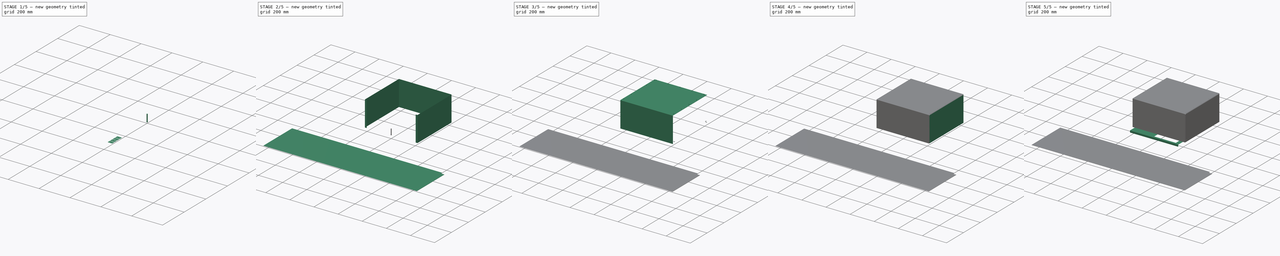
[diagram: build sequence overview — one tinted view per stage of 5, left to right]
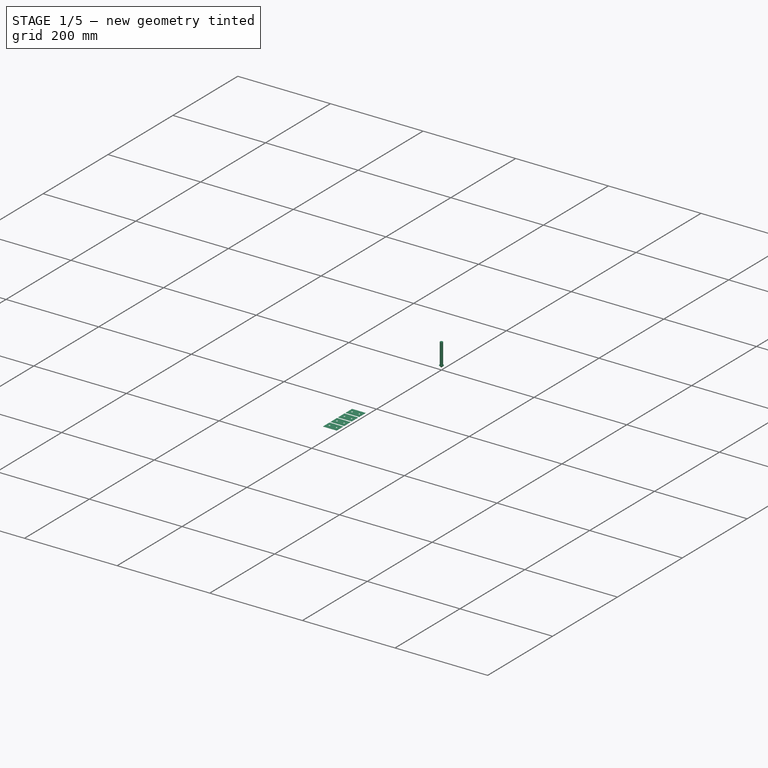
[diagram: stage 1 of 5 — iso view after this stage's code; geometry added in this stage tinted green]
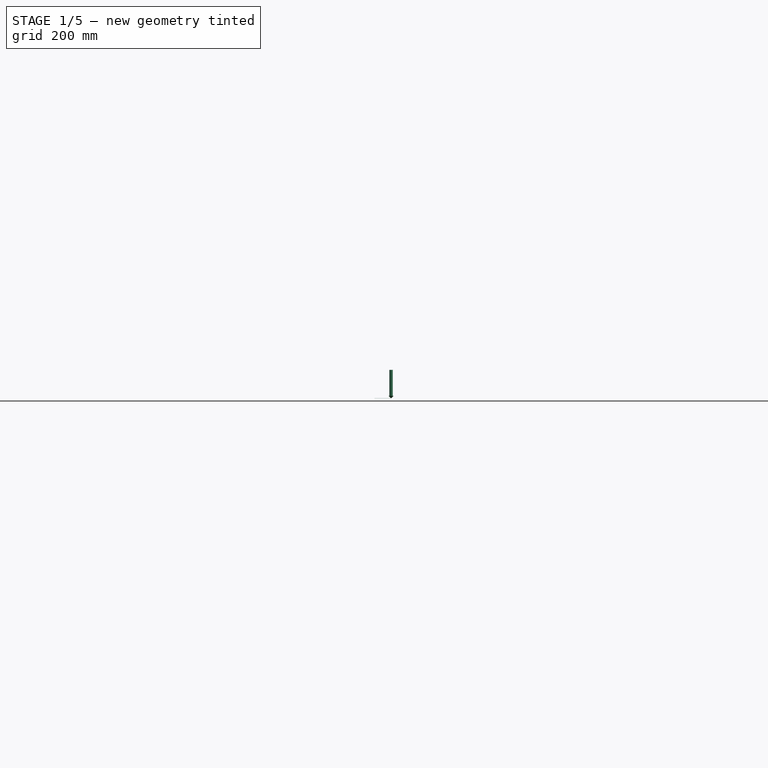
[diagram: stage 1 of 5 — front view after this stage's code; geometry added in this stage tinted green]
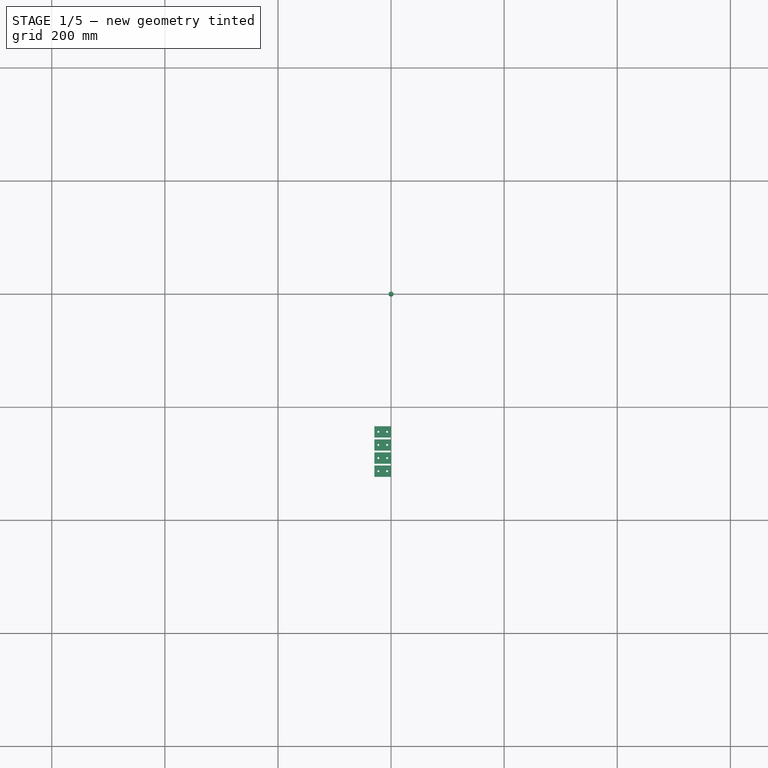
[diagram: stage 1 of 5 — top view after this stage's code; geometry added in this stage tinted green]
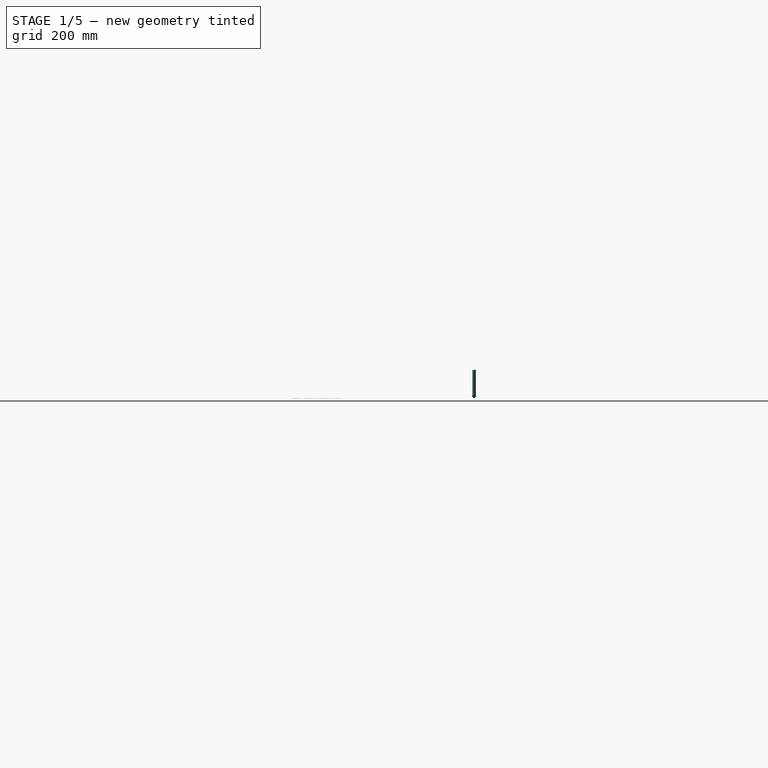
[diagram: stage 1 of 5 — right view after this stage's code; geometry added in this stage tinted green]
FCSTD DOCUMENT  (FreeCAD 0.22R37100 (Git))
Label: 3d_printer_cap
License: All rights reserved
LicenseURL: http://en.wikipedia.org/wiki/All_rights_reserved
objects: Part::FeaturePython×30, Sketcher::SketchObject×14, App::DocumentObjectGroup×10, Path::FeaturePython×8, PartDesign::Body×7, Part::Part2DObjectPython×7, PartDesign::FeaturePython×5, PartDesign::Boolean×4, PartDesign::SubShapeBinder×3, Part::MultiFuse×3, Part::Feature×2, PartDesign::FeatureBase×2, App::FeaturePython×2, Part::Extrusion×1, Part::Compound×1, Part::Cylinder×1, Path::FeatureShape×1
note: 82 computed .brp shape members not serialized (recipe doc carries the construction recipe); baked Part::Feature solids carry a one-line shape summary decoded from their .brp

FEATURE [Path::FeaturePython] __175mm_Endmill  label="3.175mm Endmill001"  # Path/CAM operation (typed FeaturePython)
  HorizFeed = 33.3333
  HorizRapid = 0
  SpindleDir = 0
  SpindleSpeed = 18000
  Tool = -> ToolBit
  ToolNumber = 1
  VertFeed = 8.33333
  VertRapid = 0
  expr: HorizRapid = SetupSheet.HorizRapid
  expr: VertRapid = SetupSheet.VertRapid
FEATURE [App::DocumentObjectGroup] Tools
  Group = -> [__175mm_Endmill]
FEATURE [App::DocumentObjectGroup] Group
  Group = -> [Body005,Clone2D,Unfold,Unfold_Sketch,Unfold_Sketch_Outline,Unfold_Sketch_Internal,Unfold_Sketch_bends]
FEATURE [Part::Feature] Unfold001
  Placement = pos=(0,0,0) rot=(0.707107,0,0.707107;3.14159rad)
  shape: bbox 20 x 29.5 x 0.3 mm, 8 faces (baked)
FEATURE [Sketcher::SketchObject] Unfold_Sketch001
  FullyConstrained = false
  sketch-geometry (6):
    g0: LineSegment StartX=0 StartY=-15 StartZ=0 EndX=0 EndY=14.4985 EndZ=0
    g1: LineSegment StartX=0 StartY=-15 StartZ=0 EndX=20 EndY=-15 EndZ=0
    g2: LineSegment StartX=20 StartY=-15 StartZ=0 EndX=20 EndY=14.4985 EndZ=0
    g3: LineSegment StartX=0 StartY=14.4985 StartZ=0 EndX=20 EndY=14.4985 EndZ=0
    g4: Circle CenterX=10 CenterY=7.49845 CenterZ=0 NormalX=0 NormalY=0 NormalZ=-1 AngleXU=1.5708 Radius=1.7
    g5: Circle CenterX=10 CenterY=-8 CenterZ=0 NormalX=0 NormalY=0 NormalZ=-1 AngleXU=-1.5708 Radius=1.7
FEATURE [Sketcher::SketchObject] Unfold_Sketch_Outline001
  FullyConstrained = false
  sketch-geometry (4):
    g0: LineSegment StartX=0 StartY=-15 StartZ=0 EndX=0 EndY=14.4985 EndZ=0
    g1: LineSegment StartX=0 StartY=14.4985 StartZ=0 EndX=20 EndY=14.4985 EndZ=0
    g2: LineSegment StartX=20 StartY=-15 StartZ=0 EndX=20 EndY=14.4985 EndZ=0
    g3: LineSegment StartX=0 StartY=-15 StartZ=0 EndX=20 EndY=-15 EndZ=0
FEATURE [Sketcher::SketchObject] Unfold_Sketch_Internal001
  FullyConstrained = false
  sketch-geometry (2):
    g0: Circle CenterX=10 CenterY=-8 CenterZ=0 NormalX=0 NormalY=0 NormalZ=-1 AngleXU=-1.5708 Radius=1.7
    g1: Circle CenterX=10 CenterY=7.49845 CenterZ=0 NormalX=0 NormalY=0 NormalZ=-1 AngleXU=1.5708 Radius=1.7
FEATURE [Sketcher::SketchObject] Unfold_Sketch_bends001
  FullyConstrained = false
  sketch-geometry (1):
    g0: LineSegment StartX=20 StartY=-0.250774 StartZ=0 EndX=0 EndY=-0.250774 EndZ=0
FEATURE [PartDesign::FeatureBase] BaseFeature001
  BaseFeature = -> Unfold001
  Placement = pos=(0,0,0) rot=(0.707107,0,0.707107;3.14159rad)
  Suppressed = false
  expr: Placement = .BaseFeature.Placement
FEATURE [PartDesign::Body] Body006
  BaseFeature = -> Unfold001
  Group = -> [BaseFeature001]
  Origin = -> Origin006
  Tip = -> BaseFeature001
FEATURE [Part::Part2DObjectPython] Clone2D001  label="Unfold_Sketch_bends001 (2D)"  # Draft 2D object (typed FeaturePython)
  Fuse = false
  Objects = -> [Unfold_Sketch_bends001]
  Scale = (1,1,1)
FEATURE [App::DocumentObjectGroup] Group001
  Group = -> [Body006,Clone2D001,Unfold001,Unfold_Sketch001,Unfold_Sketch_Outline001,Unfold_Sketch_Internal001,Unfold_Sketch_bends001]
FEATURE [Part::FeaturePython] Clone001  label="Model-Body006"  # Draft clone (typed FeaturePython)
  AttacherType = Attacher::AttachEngine3D
  Fuse = false
  Objects = -> [Body006]
  PathResource = Model
  Placement = pos=(-14.4985,-233.499,0) rot=(0,0,1;-1.5708rad)
  Scale = (1,1,1)
FEATURE [Part::FeaturePython] Clone002  label="Model-Body007"  # Draft clone (typed FeaturePython)
  AttacherType = Attacher::AttachEngine3D
  Fuse = false
  Objects = -> [Body006]
  PathResource = Model
  Placement = pos=(-14.4985,-256.699,0) rot=(0,0,1;-1.5708rad)
  Scale = (1,1,1)
FEATURE [Part::FeaturePython] Clone003  label="Model-Body008"  # Draft clone (typed FeaturePython)
  AttacherType = Attacher::AttachEngine3D
  Fuse = false
  Objects = -> [Body006]
  PathResource = Model
  Placement = pos=(-14.4985,-279.899,0) rot=(0,0,1;-1.5708rad)
  Scale = (1,1,1)
FEATURE [Part::FeaturePython] Clone004  label="Model-Body009"  # Draft clone (typed FeaturePython)
  AttacherType = Attacher::AttachEngine3D
  Fuse = false
  Objects = -> [Body006]
  PathResource = Model
  Placement = pos=(-14.4985,-303.099,0) rot=(0,0,1;-1.5708rad)
  Scale = (1,1,1)
FEATURE [Path::FeaturePython] Profile  # Path/CAM operation (typed FeaturePython)
  Active = true
  AreaParams:
    Tolerance = 1e-07
    FitArcs = True
    Simplify = False
    CleanDistance = 0.0
    Accuracy = 0.01
    Unit = 1.0
    MinArcPoints = 4
    MaxArcPoints = 100
    ClipperScale = 10000000.0
    Fill = 0
    Coplanar = 0
    Reorient = True
    Outline = False
    Explode = False
    OpenMode = 0
    Deflection = 0.01
    SubjectFill = 0
    ClipFill = 0
    Offset = -1.5875
    ExtraPass = 0
    Stepover = 0.0
    LastStepover = 0.0
    JoinType = 0
    EndType = 0
    MiterLimit = 2.0
    RoundPrecision = 0.0
    PocketMode = 0
    ToolRadius = 1.0
    PocketExtraOffset = 0.0
    PocketStepover = 0.0
    PocketLastStepover = 0.0
    FromCenter = False
    Angle = 45.0
    AngleShift = 0.0
    Shift = 0.0
    Thicken = False
    SectionCount = -1
    Stepdown = 1.0
    SectionOffset = 0.0
    SectionTolerance = 1e-06
    SectionMode = 2
    Project = False
  Base = -> [Clone,Clone001,Clone002,Clone003,Clone004]
  ClearanceHeight = 17
  CoolantMode = 0
  CycleTime = 00:03:56
  Direction = 1
  FinalDepth = -0.1
  HandleMultipleFeatures = 0
  JoinType = 0
  MiterLimit = 0.1
  OffsetExtra = 0
  OpFinalDepth = 2.84e-14
  OpStartDepth = 1.3
  OpStockZMax = 1.3
  OpStockZMin = 2.84e-14
  OpToolDiameter = 3.175
  PathParams = {'orientation': 1, 'feedrate': 33.333333333333336, 'feedrate_v': 8.333333333333334, 'verbose': True, 'resume_height': 4.300000000000211, 'retraction': 17.00000000000021, 'return_end': True, 'preamble': False, 'start': Vector (-428.10065818080915, -13.000000010897026, 17.00000000000021)}
  SafeHeight = 4.3
  Side = 0
  SplitArcs = false
  StartDepth = 3
  StartPoint = (0,0,0)
  StepDown = 4
  ToolController = -> __175mm_Endmill
  UseComp = true
  UseStartPoint = false
  processCircles = true
  processHoles = true
  processPerimeter = false
  expr: ClearanceHeight = OpStockZMax + SetupSheet.ClearanceHeightOffset
  expr: FinalDepth = -0.1 mm
  expr: SafeHeight = OpStockZMax + SetupSheet.SafeHeightOffset
  expr: StartDepth = 3 mm
  expr: StepDown = 4 mm
FEATURE [Path::FeaturePython] Profile001  # Path/CAM operation (typed FeaturePython)
  Active = true
  AreaParams:
    Tolerance = 1e-07
    FitArcs = True
    Simplify = False
    CleanDistance = 0.0
    Accuracy = 0.01
    Unit = 1.0
    MinArcPoints = 4
    MaxArcPoints = 100
    ClipperScale = 10000000.0
    Fill = 0
    Coplanar = 0
    Reorient = True
    Outline = False
    Explode = False
    OpenMode = 0
    Deflection = 0.01
    SubjectFill = 0
    ClipFill = 0
    Offset = 1.5875
    ExtraPass = 0
    Stepover = 0.0
    LastStepover = 0.0
    JoinType = 0
    EndType = 0
    MiterLimit = 2.0
    RoundPrecision = 0.0
    PocketMode = 0
    ToolRadius = 1.0
    PocketExtraOffset = 0.0
    PocketStepover = 0.0
    PocketLastStepover = 0.0
    FromCenter = False
    Angle = 45.0
    AngleShift = 0.0
    Shift = 0.0
    Thicken = False
    SectionCount = -1
    Stepdown = 1.0
    SectionOffset = 0.0
    SectionTolerance = 1e-06
    SectionMode = 2
    Project = False
  Base = -> [Clone,Clone001,Clone002,Clone003,Clone004]
  ClearanceHeight = 17
  CoolantMode = 0
  CycleTime = 00:02:15
  Direction = 1
  FinalDepth = -0.1
  HandleMultipleFeatures = 0
  JoinType = 0
  MiterLimit = 0.1
  OffsetExtra = 0
  OpFinalDepth = 2.84e-14
  OpStartDepth = 1.3
  OpStockZMax = 1.3
  OpStockZMin = 2.84e-14
  OpToolDiameter = 3.175
  PathParams = {'orientation': 0, 'feedrate': 33.333333333333336, 'feedrate_v': 8.333333333333334, 'verbose': True, 'resume_height': 4.300000000000211, 'retraction': 17.00000000000021, 'return_end': True, 'preamble': False, 'start': Vector (-1.510455126141292e-07, -278.3110002, 17.00000000000021)}
  SafeHeight = 4.3
  Side = 0
  SplitArcs = false
  StartDepth = 3
  StartPoint = (0,0,0)
  StepDown = 4
  ToolController = -> __175mm_Endmill
  UseComp = true
  UseStartPoint = false
  processCircles = false
  processHoles = false
  processPerimeter = true
  expr: Base = <<Profile>>.Base
  expr: ClearanceHeight = OpStockZMax + SetupSheet.ClearanceHeightOffset
  expr: FinalDepth = -0.1 mm
  expr: SafeHeight = OpStockZMax + SetupSheet.SafeHeightOffset
  expr: StartDepth = 3 mm
  expr: StepDown = 4 mm
FEATURE [App::DocumentObjectGroup] Operations
  Group = -> [Profile,Profile001]
FEATURE [Path::FeaturePython] Job  # Path/CAM operation (typed FeaturePython)
  CycleTime = 00:06:11
  Fixtures = G54
  GeometryTolerance = 0.01
  JobType = 0
  LastPostProcessDate = 2024-06-21 16:44:17.395718
  LastPostProcessOutput = <path> \n/mnt/flash/Job-1.tap
  Model = -> Model
  Operations = -> Operations
  OrderOutputBy = 2
  PostProcessor = 13
  PostProcessorOutputFile = <path>/%j.tap
  SetupSheet = -> SetupSheet
  SplitOutput = true
  Stock = -> Stock
  Tools = -> Tools
FEATURE [App::FeaturePython] SetupSheet001  # Path/CAM operation (typed FeaturePython)
  ClearanceHeightExpression = OpStockZMax+SetupSheet001.ClearanceHeightOffset
  ClearanceHeightOffset = 15
  CoolantMode = 0
  CoolantModes = None | Flood | Mist
  DeburrExtraDepth = 0
  DeburrWidth = 2.7
  FinalDepthExpression = 0.5 mm
  HorizRapid = 0
  ProfileDirection = 1
  ProfileprocessCircles = true
  ProfileprocessHoles = true
  ProfileprocessPerimeter = true
  SafeHeightExpression = OpStockZMax+SetupSheet001.SafeHeightOffset
  SafeHeightOffset = 3
  StartDepthExpression = 3 mm
  StepDownExpression = OpToolDiameter
  VertRapid = 0
FEATURE [Part::Part2DObjectPython] Clone2D002  label="Model-Unfold_Sketch_bends (2D)"  # Draft 2D object (typed FeaturePython)
  Fuse = false
  Objects = -> [Clone2D]
  PathResource = Model
  Placement = pos=(-634.997,-612.898,-1.99e-13) rot=(0,0,1;-1.5708rad)
  Scale = (1,1,1)
  expr: Placement = <<Model-Body005>>.Placement
FEATURE [Part::Part2DObjectPython] Clone2D003  label="Model-Unfold_Sketch_bends001 (2D)"  # Draft 2D object (typed FeaturePython)
  Fuse = false
  Objects = -> [Clone2D001]
  PathResource = Model
  Placement = pos=(-14.4985,-233.499,0) rot=(0,0,1;-1.5708rad)
  Scale = (1,1,1)
  expr: Placement = <<Model-Body006>>.Placement
FEATURE [Part::Part2DObjectPython] Clone2D004  label="Model-Unfold_Sketch_bends001 (2D)001"  # Draft 2D object (typed FeaturePython)
  Fuse = false
  Objects = -> [Clone2D001]
  PathResource = Model
  Placement = pos=(-14.4985,-256.699,0) rot=(0,0,1;-1.5708rad)
  Scale = (1,1,1)
  expr: Placement = <<Model-Body007>>.Placement
FEATURE [Part::Part2DObjectPython] Clone2D005  label="Model-Unfold_Sketch_bends001 (2D)002"  # Draft 2D object (typed FeaturePython)
  Fuse = false
  Objects = -> [Clone2D001]
  PathResource = Model
  Placement = pos=(-14.4985,-279.899,0) rot=(0,0,1;-1.5708rad)
  Scale = (1,1,1)
  expr: Placement = <<Model-Body008>>.Placement
FEATURE [Part::Part2DObjectPython] Clone2D006  label="Model-Unfold_Sketch_bends001 (2D)003"  # Draft 2D object (typed FeaturePython)
  Fuse = false
  Objects = -> [Clone2D001]
  PathResource = Model
  Placement = pos=(-14.4985,-303.099,0) rot=(0,0,1;-1.5708rad)
  Scale = (1,1,1)
  expr: Placement = <<Model-Body009>>.Placement
FEATURE [App::DocumentObjectGroup] Model001
  Group = -> [Clone2D002,Clone2D003,Clone2D004,Clone2D005,Clone2D006]
FEATURE [Part::FeaturePython] ToolBit001  label="NZV6109015"  # Path/CAM toolbit (typed FeaturePython)
  BitPropertyNames = Chipload | CuttingEdgeAngle | CuttingEdgeHeight | Diameter | Flutes | Length | Material | ShankDiameter | TipDiameter
  BitShape = <path>
  Chipload = 0
  CuttingEdgeAngle = 90
  CuttingEdgeHeight = 4
  Diameter = 10
  Flutes = 0
  Length = 50
  Material = 0
  ShankDiameter = 6
  ShapeName = chamfer
  TipDiameter = 1
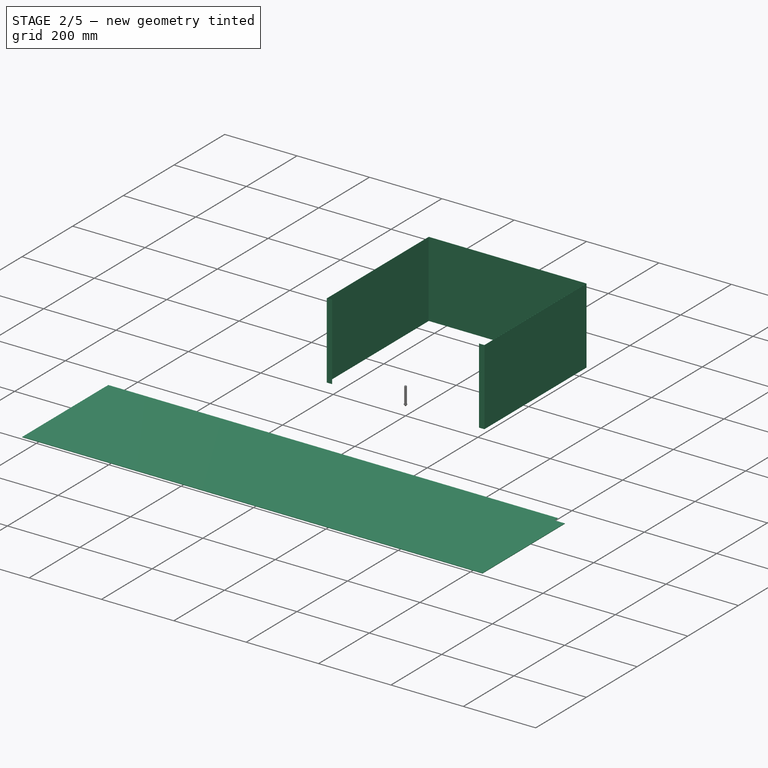
[diagram: stage 2 of 5 — iso view after this stage's code; geometry added in this stage tinted green]
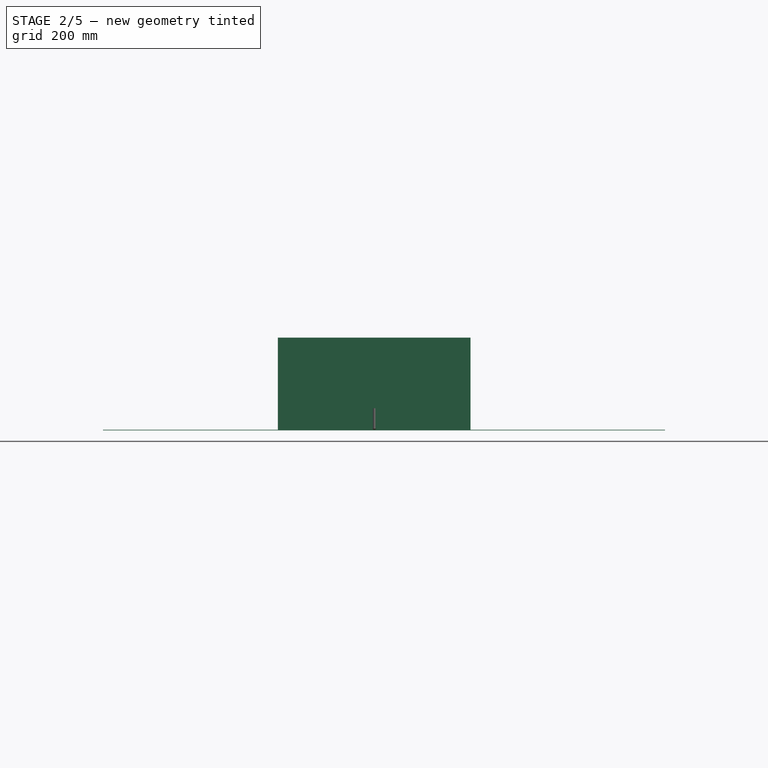
[diagram: stage 2 of 5 — front view after this stage's code; geometry added in this stage tinted green]
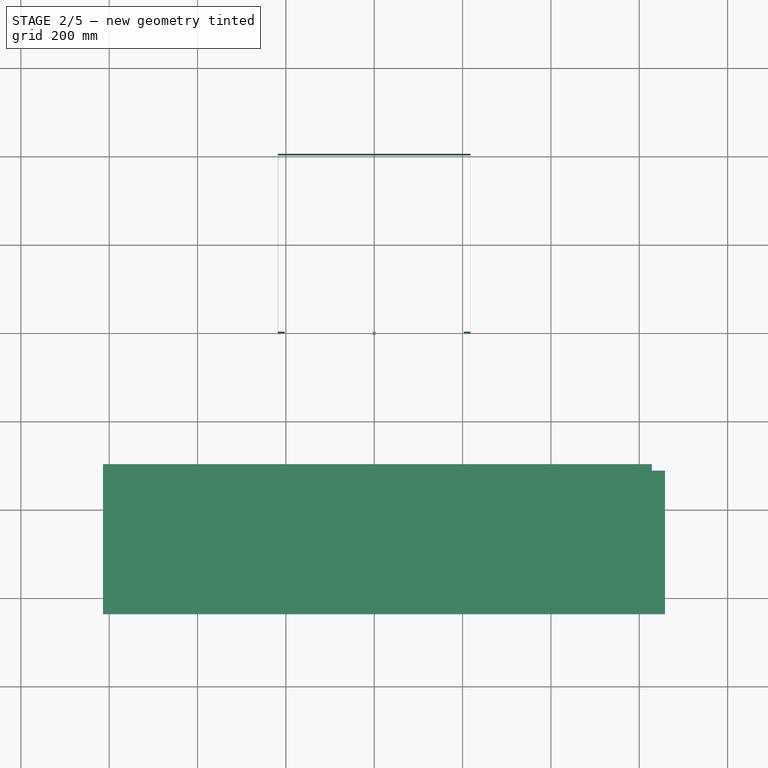
[diagram: stage 2 of 5 — top view after this stage's code; geometry added in this stage tinted green]
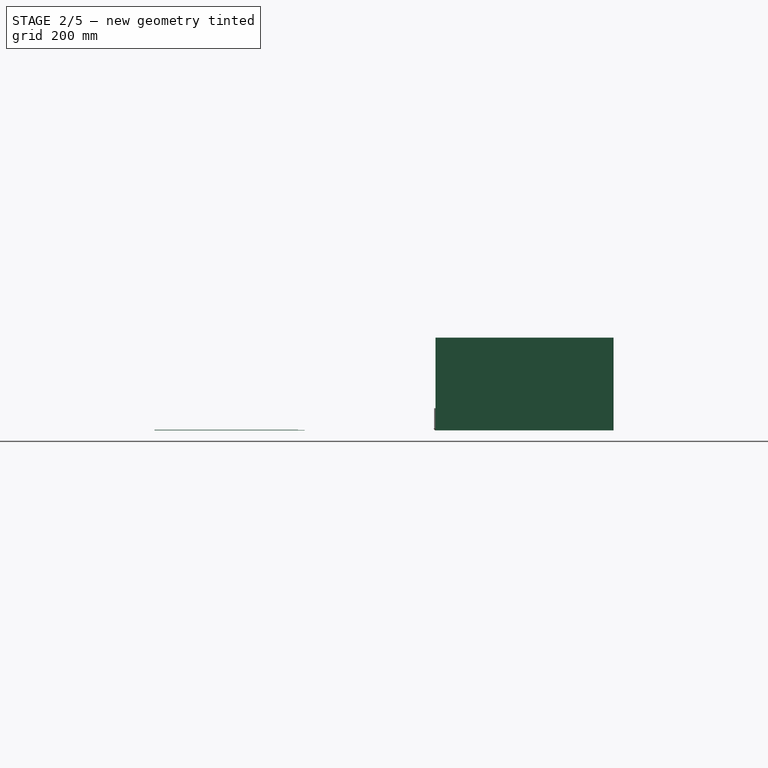
[diagram: stage 2 of 5 — right view after this stage's code; geometry added in this stage tinted green]
FEATURE [PartDesign::Body] Body
  Group = -> [Sketch001,BaseBend,Boolean]
  Origin = -> Origin
  Tip = -> Boolean
FEATURE [Sketcher::SketchObject] Sketch002  label="cap_sketch"
  FullyConstrained = true
  sketch-geometry (7):
    g0: LineSegment StartX=-218 StartY=403 StartZ=0 EndX=-218 EndY=0 EndZ=0
    g1: LineSegment StartX=218 StartY=0 StartZ=0 EndX=218 EndY=403 EndZ=0
    g2: LineSegment StartX=218 StartY=403 StartZ=0 EndX=-218 EndY=403 EndZ=0
    g3: GeomPoint X=0 Y=201.5 Z=0
    g4: LineSegment StartX=203 StartY=0 StartZ=0 EndX=218 EndY=0 EndZ=0
    g5: LineSegment StartX=-218 StartY=0 StartZ=0 EndX=-203 EndY=0 EndZ=0
    g6: LineSegment StartX=-203 StartY=0 StartZ=0 EndX=203 EndY=0 EndZ=0
  constraints (19):
    c: Coincident(g0,g5)
    c: Coincident(g4,g1)
    c: Coincident(g1,g2)
    c: Coincident(g2,g0)
    c: Vertical(g0)
    c: Vertical(g1)
    c: Horizontal(g2)
    c: Symmetric(g1,g0,g3)
    c: PointOnObject(g3,g-2)
    c: PointOnObject(g4,g-1)
    c: Coincident(g6,g4)
    c: Horizontal(g4)
    c: Coincident(g5,g6)
    c: Horizontal(g5)
    c: Horizontal(g6)
    c: Equal(g5,g4)
    c: DistanceX(g0,g1) = 436  'length'
    c: DistanceY(g0,g1) = 403  'width'
    c: DistanceX(g4,g4) = 15
FEATURE [PartDesign::SubShapeBinder] Binder
  BindCopyOnChange = 0
  BindMode = 0
  ClaimChildren = true
  Context = -> Body002 [Binder.]
  Fuse = false
  MakeFace = true
  OffsetFill = false
  OffsetIntersection = false
  OffsetJoinType = 0
  OffsetOpenResult = false
  PartialLoad = false
  Relative = true
  Support = -> [Sketch002]
  _Version = 2
FEATURE [PartDesign::FeaturePython] BaseBend001  # WARN: FeaturePython — macro-defined, semantics opaque (R4)
  BendSide = 1
  BendSketch = -> Binder
  MidPlane = false
  Reverse = false
  Suppressed = false
  length = 210
  radius = 0.1
  thickness = 0.3
FEATURE [PartDesign::Body] Body004
  Group = -> [BaseBend003,Binder002,Boolean003]
  Origin = -> Origin004
  Tip = -> Boolean003
FEATURE [Part::Feature] Unfold
  Placement = pos=(0,0,210.4) rot=(0.707107,-0.707107,0;3.14159rad)
  shape: bbox 230.3 x 1270 x 0.3 mm, 67 faces (baked)
FEATURE [Sketcher::SketchObject] Unfold_Sketch
  FullyConstrained = false
  sketch-geometry (65):
    g0: LineSegment StartX=-612.898 StartY=-634.997 StartZ=0 EndX=-402.898 EndY=-634.997 EndZ=0
    g1: LineSegment StartX=-402.898 StartY=-634.997 StartZ=0 EndX=-402.898 EndY=-617.898 EndZ=0
    g2: LineSegment StartX=-403.898 StartY=-617.898 StartZ=0 EndX=-402.898 EndY=-617.898 EndZ=0
    g3: LineSegment StartX=-403.898 StartY=-617.098 StartZ=0 EndX=-403.898 EndY=-617.898 EndZ=0
    g4: LineSegment StartX=-382.6 StartY=-617.098 StartZ=0 EndX=-403.898 EndY=-617.098 EndZ=0
    g5: LineSegment StartX=-382.6 StartY=-617.098 StartZ=0 EndX=-382.6 EndY=-238.098 EndZ=0
    g6: LineSegment StartX=-382.6 StartY=-238.098 StartZ=0 EndX=-402.6 EndY=-218.098 EndZ=0
    g7: LineSegment StartX=-402.6 StartY=-218.098 StartZ=0 EndX=-402.6 EndY=-220.898 EndZ=0
    g8: LineSegment StartX=-403.898 StartY=-220.898 StartZ=0 EndX=-402.6 EndY=-220.898 EndZ=0
    g9: LineSegment StartX=-403.898 StartY=-220.098 StartZ=0 EndX=-403.898 EndY=-220.898 EndZ=0
    g10: LineSegment StartX=-402.898 StartY=-220.098 StartZ=0 EndX=-403.898 EndY=-220.098 EndZ=0
    g11: LineSegment StartX=-402.898 StartY=-220.098 StartZ=0 EndX=-402.898 EndY=-215.4 EndZ=0
    g12: LineSegment StartX=-403.898 StartY=-215.4 StartZ=0 EndX=-402.898 EndY=-215.4 EndZ=0
    g13: LineSegment StartX=-403.898 StartY=-214.6 StartZ=0 EndX=-403.898 EndY=-215.4 EndZ=0
    g14: LineSegment StartX=-402.6 StartY=-214.6 StartZ=0 EndX=-403.898 EndY=-214.6 EndZ=0
    g15: LineSegment StartX=-402.6 StartY=-214.6 StartZ=0 EndX=-402.6 EndY=-217.4 EndZ=0
    g16: LineSegment StartX=-402.6 StartY=-217.4 StartZ=0 EndX=-382.6 EndY=-197.4 EndZ=0
    g17: LineSegment StartX=-382.6 StartY=-197.4 StartZ=0 EndX=-382.6 EndY=197.4 EndZ=0
    g18: LineSegment StartX=-382.6 StartY=197.4 StartZ=0 EndX=-402.6 EndY=217.4 EndZ=0
    g19: LineSegment StartX=-402.6 StartY=217.4 StartZ=0 EndX=-402.6 EndY=214.6 EndZ=0
    g20: LineSegment StartX=-403.898 StartY=214.6 StartZ=0 EndX=-402.6 EndY=214.6 EndZ=0
    g21: LineSegment StartX=-403.898 StartY=215.4 StartZ=0 EndX=-403.898 EndY=214.6 EndZ=0
    g22: LineSegment StartX=-402.898 StartY=215.4 StartZ=0 EndX=-403.898 EndY=215.4 EndZ=0
    g23: LineSegment StartX=-402.898 StartY=215.4 StartZ=0 EndX=-402.898 EndY=220.098 EndZ=0
    g24: LineSegment StartX=-403.898 StartY=220.098 StartZ=0 EndX=-402.898 EndY=220.098 EndZ=0
    g25: LineSegment StartX=-403.898 StartY=220.898 StartZ=0 EndX=-403.898 EndY=220.098 EndZ=0
    g26: LineSegment StartX=-402.6 StartY=220.898 StartZ=0 EndX=-403.898 EndY=220.898 EndZ=0
    g27: LineSegment StartX=-402.6 StartY=220.898 StartZ=0 EndX=-402.6 EndY=218.098 EndZ=0
    g28: LineSegment StartX=-402.6 StartY=218.098 StartZ=0 EndX=-382.6 EndY=238.098 EndZ=0
    g29: LineSegment StartX=-382.6 StartY=238.098 StartZ=0 EndX=-382.6 EndY=617.098 EndZ=0
    g30: LineSegment StartX=-382.6 StartY=617.098 StartZ=0 EndX=-403.898 EndY=617.098 EndZ=0
    g31: LineSegment StartX=-403.898 StartY=617.898 StartZ=0 EndX=-403.898 EndY=617.098 EndZ=0
    g32: LineSegment StartX=-402.898 StartY=617.898 StartZ=0 EndX=-403.898 EndY=617.898 EndZ=0
    g33: LineSegment StartX=-402.898 StartY=617.898 StartZ=0 EndX=-402.898 EndY=634.997 EndZ=0
    g34: LineSegment StartX=-612.898 StartY=634.997 StartZ=0 EndX=-402.898 EndY=634.997 EndZ=0
    g35: LineSegment StartX=-612.898 StartY=-634.997 StartZ=0 EndX=-612.898 EndY=634.997 EndZ=0
    g36: Circle CenterX=-599.898 CenterY=-630.997 CenterZ=0 NormalX=0 NormalY=0 NormalZ=-1 AngleXU=-1.5708 Radius=1.7
    g37: Circle CenterX=-572.898 CenterY=-629.997 CenterZ=0 NormalX=0 NormalY=0 NormalZ=-1 AngleXU=-3.14159 Radius=1.7
    g38: Circle CenterX=-599.898 CenterY=-609.498 CenterZ=0 NormalX=0 NormalY=0 NormalZ=-1 AngleXU=1.5708 Radius=1.7
    g39: Circle CenterX=-599.898 CenterY=630.997 CenterZ=0 NormalX=0 NormalY=0 NormalZ=-1 AngleXU=1.5708 Radius=1.7
    g40: Circle CenterX=-572.898 CenterY=629.997 CenterZ=0 NormalX=0 NormalY=0 NormalZ=-1 AngleXU=-3.14159 Radius=1.7
    g41: Circle CenterX=-599.898 CenterY=609.498 CenterZ=0 NormalX=0 NormalY=0 NormalZ=-1 AngleXU=-1.5708 Radius=1.7
    g42: Circle CenterX=-422.898 CenterY=-629.997 CenterZ=0 NormalX=0 NormalY=0 NormalZ=-1 AngleXU=-3.14159 Radius=1.7
    g43: Circle CenterX=-393 CenterY=600.498 CenterZ=0 NormalX=0 NormalY=0 NormalZ=1 AngleXU=-1.5708 Radius=1.7
    g44: Circle CenterX=-393 CenterY=-600.498 CenterZ=0 NormalX=0 NormalY=0 NormalZ=1 AngleXU=1.5708 Radius=1.7
    g45: Circle CenterX=-497.898 CenterY=629.997 CenterZ=0 NormalX=0 NormalY=0 NormalZ=-1 AngleXU=-3.14159 Radius=1.7
    g46: Circle CenterX=-422.898 CenterY=629.997 CenterZ=0 NormalX=0 NormalY=0 NormalZ=-1 AngleXU=-3.14159 Radius=1.7
    g47: Circle CenterX=-599.898 CenterY=228.498 CenterZ=0 NormalX=0 NormalY=0 NormalZ=-1 AngleXU=1.5708 Radius=1.7
    g48: Circle CenterX=-599.898 CenterY=-207 CenterZ=0 NormalX=0 NormalY=0 NormalZ=-1 AngleXU=1.5708 Radius=1.7
    g49: Circle CenterX=-599.898 CenterY=207 CenterZ=0 NormalX=0 NormalY=0 NormalZ=-1 AngleXU=-1.5708 Radius=1.7
    g50: Circle CenterX=-599.898 CenterY=-228.498 CenterZ=0 NormalX=0 NormalY=0 NormalZ=-1 AngleXU=-1.5708 Radius=1.7
    g51: Circle CenterX=-497.898 CenterY=-629.997 CenterZ=0 NormalX=0 NormalY=0 NormalZ=-1 AngleXU=-3.14159 Radius=1.7
    g52: Circle CenterX=-393 CenterY=99 CenterZ=0 NormalX=0 NormalY=0 NormalZ=1 AngleXU=-1.5708 Radius=1.7
    g53: Circle CenterX=-393 CenterY=-99 CenterZ=0 NormalX=0 NormalY=0 NormalZ=1 AngleXU=-1.5708 Radius=1.7
    g54: Circle CenterX=-393 CenterY=0 CenterZ=0 NormalX=0 NormalY=0 NormalZ=1 AngleXU=-1.5708 Radius=1.7
    g55: Circle CenterX=-393 CenterY=-509.748 CenterZ=0 NormalX=0 NormalY=0 NormalZ=1 AngleXU=1.5708 Radius=1.7
    g56: Circle CenterX=-393 CenterY=-328.248 CenterZ=0 NormalX=0 NormalY=0 NormalZ=1 AngleXU=1.5708 Radius=1.7
    g57: Circle CenterX=-393 CenterY=-418.998 CenterZ=0 NormalX=0 NormalY=0 NormalZ=1 AngleXU=1.5708 Radius=1.7
    g58: Circle CenterX=-393 CenterY=-237.498 CenterZ=0 NormalX=0 NormalY=0 NormalZ=1 AngleXU=1.5708 Radius=1.7
    g59: Circle CenterX=-393 CenterY=-198 CenterZ=0 NormalX=0 NormalY=0 NormalZ=1 AngleXU=-1.5708 Radius=1.7
    g60: Circle CenterX=-393 CenterY=198 CenterZ=0 NormalX=0 NormalY=0 NormalZ=1 AngleXU=-1.5708 Radius=1.7
    g61: Circle CenterX=-393 CenterY=509.748 CenterZ=0 NormalX=0 NormalY=0 NormalZ=1 AngleXU=-1.5708 Radius=1.7
    g62: Circle CenterX=-393 CenterY=418.998 CenterZ=0 NormalX=0 NormalY=0 NormalZ=1 AngleXU=-1.5708 Radius=1.7
    g63: Circle CenterX=-393 CenterY=328.248 CenterZ=0 NormalX=0 NormalY=0 NormalZ=1 AngleXU=-1.5708 Radius=1.7
    g64: Circle CenterX=-393 CenterY=237.498 CenterZ=0 NormalX=0 NormalY=0 NormalZ=1 AngleXU=-1.5708 Radius=1.7
FEATURE [Sketcher::SketchObject] Unfold_Sketch_Outline
  FullyConstrained = false
  sketch-geometry (36):
    g0: LineSegment StartX=-612.898 StartY=-634.997 StartZ=0 EndX=-402.898 EndY=-634.997 EndZ=0
    g1: LineSegment StartX=-402.898 StartY=-634.997 StartZ=0 EndX=-402.898 EndY=-617.898 EndZ=0
    g2: LineSegment StartX=-403.898 StartY=-617.898 StartZ=0 EndX=-402.898 EndY=-617.898 EndZ=0
    g3: LineSegment StartX=-403.898 StartY=-617.098 StartZ=0 EndX=-403.898 EndY=-617.898 EndZ=0
    g4: LineSegment StartX=-382.6 StartY=-617.098 StartZ=0 EndX=-403.898 EndY=-617.098 EndZ=0
    g5: LineSegment StartX=-382.6 StartY=-617.098 StartZ=0 EndX=-382.6 EndY=-238.098 EndZ=0
    g6: LineSegment StartX=-382.6 StartY=-238.098 StartZ=0 EndX=-402.6 EndY=-218.098 EndZ=0
    g7: LineSegment StartX=-402.6 StartY=-218.098 StartZ=0 EndX=-402.6 EndY=-220.898 EndZ=0
    g8: LineSegment StartX=-403.898 StartY=-220.898 StartZ=0 EndX=-402.6 EndY=-220.898 EndZ=0
    g9: LineSegment StartX=-403.898 StartY=-220.098 StartZ=0 EndX=-403.898 EndY=-220.898 EndZ=0
    g10: LineSegment StartX=-402.898 StartY=-220.098 StartZ=0 EndX=-403.898 EndY=-220.098 EndZ=0
    g11: LineSegment StartX=-402.898 StartY=-220.098 StartZ=0 EndX=-402.898 EndY=-215.4 EndZ=0
    g12: LineSegment StartX=-403.898 StartY=-215.4 StartZ=0 EndX=-402.898 EndY=-215.4 EndZ=0
    g13: LineSegment StartX=-403.898 StartY=-214.6 StartZ=0 EndX=-403.898 EndY=-215.4 EndZ=0
    g14: LineSegment StartX=-402.6 StartY=-214.6 StartZ=0 EndX=-403.898 EndY=-214.6 EndZ=0
    g15: LineSegment StartX=-402.6 StartY=-214.6 StartZ=0 EndX=-402.6 EndY=-217.4 EndZ=0
    g16: LineSegment StartX=-402.6 StartY=-217.4 StartZ=0 EndX=-382.6 EndY=-197.4 EndZ=0
    g17: LineSegment StartX=-382.6 StartY=-197.4 StartZ=0 EndX=-382.6 EndY=197.4 EndZ=0
    g18: LineSegment StartX=-382.6 StartY=197.4 StartZ=0 EndX=-402.6 EndY=217.4 EndZ=0
    g19: LineSegment StartX=-402.6 StartY=217.4 StartZ=0 EndX=-402.6 EndY=214.6 EndZ=0
    g20: LineSegment StartX=-403.898 StartY=214.6 StartZ=0 EndX=-402.6 EndY=214.6 EndZ=0
    g21: LineSegment StartX=-403.898 StartY=215.4 StartZ=0 EndX=-403.898 EndY=214.6 EndZ=0
    g22: LineSegment StartX=-402.898 StartY=215.4 StartZ=0 EndX=-403.898 EndY=215.4 EndZ=0
    g23: LineSegment StartX=-402.898 StartY=215.4 StartZ=0 EndX=-402.898 EndY=220.098 EndZ=0
    g24: LineSegment StartX=-403.898 StartY=220.098 StartZ=0 EndX=-402.898 EndY=220.098 EndZ=0
    g25: LineSegment StartX=-403.898 StartY=220.898 StartZ=0 EndX=-403.898 EndY=220.098 EndZ=0
    g26: LineSegment StartX=-402.6 StartY=220.898 StartZ=0 EndX=-403.898 EndY=220.898 EndZ=0
    g27: LineSegment StartX=-402.6 StartY=220.898 StartZ=0 EndX=-402.6 EndY=218.098 EndZ=0
    g28: LineSegment StartX=-402.6 StartY=218.098 StartZ=0 EndX=-382.6 EndY=238.098 EndZ=0
    g29: LineSegment StartX=-382.6 StartY=238.098 StartZ=0 EndX=-382.6 EndY=617.098 EndZ=0
    g30: LineSegment StartX=-382.6 StartY=617.098 StartZ=0 EndX=-403.898 EndY=617.098 EndZ=0
    g31: LineSegment StartX=-403.898 StartY=617.898 StartZ=0 EndX=-403.898 EndY=617.098 EndZ=0
    g32: LineSegment StartX=-402.898 StartY=617.898 StartZ=0 EndX=-403.898 EndY=617.898 EndZ=0
    g33: LineSegment StartX=-402.898 StartY=617.898 StartZ=0 EndX=-402.898 EndY=634.997 EndZ=0
    g34: LineSegment StartX=-612.898 StartY=634.997 StartZ=0 EndX=-402.898 EndY=634.997 EndZ=0
    g35: LineSegment StartX=-612.898 StartY=-634.997 StartZ=0 EndX=-612.898 EndY=634.997 EndZ=0
FEATURE [Sketcher::SketchObject] Unfold_Sketch_Internal
  FullyConstrained = false
  sketch-geometry (29):
    g0: Circle CenterX=-393 CenterY=-600.498 CenterZ=0 NormalX=0 NormalY=0 NormalZ=1 AngleXU=1.5708 Radius=1.7
    g1: Circle CenterX=-393 CenterY=600.498 CenterZ=0 NormalX=0 NormalY=0 NormalZ=1 AngleXU=-1.5708 Radius=1.7
    g2: Circle CenterX=-393 CenterY=-99 CenterZ=0 NormalX=0 NormalY=0 NormalZ=1 AngleXU=-1.5708 Radius=1.7
    g3: Circle CenterX=-393 CenterY=99 CenterZ=0 NormalX=0 NormalY=0 NormalZ=1 AngleXU=-1.5708 Radius=1.7
    g4: Circle CenterX=-393 CenterY=0 CenterZ=0 NormalX=0 NormalY=0 NormalZ=1 AngleXU=-1.5708 Radius=1.7
    g5: Circle CenterX=-599.898 CenterY=609.498 CenterZ=0 NormalX=0 NormalY=0 NormalZ=-1 AngleXU=-1.5708 Radius=1.7
    g6: Circle CenterX=-572.898 CenterY=629.997 CenterZ=0 NormalX=0 NormalY=0 NormalZ=-1 AngleXU=-3.14159 Radius=1.7
    g7: Circle CenterX=-599.898 CenterY=630.997 CenterZ=0 NormalX=0 NormalY=0 NormalZ=-1 AngleXU=1.5708 Radius=1.7
    g8: Circle CenterX=-599.898 CenterY=-609.498 CenterZ=0 NormalX=0 NormalY=0 NormalZ=-1 AngleXU=1.5708 Radius=1.7
    g9: Circle CenterX=-572.898 CenterY=-629.997 CenterZ=0 NormalX=0 NormalY=0 NormalZ=-1 AngleXU=-3.14159 Radius=1.7
    g10: Circle CenterX=-599.898 CenterY=-630.997 CenterZ=0 NormalX=0 NormalY=0 NormalZ=-1 AngleXU=-1.5708 Radius=1.7
    g11: Circle CenterX=-393 CenterY=237.498 CenterZ=0 NormalX=0 NormalY=0 NormalZ=1 AngleXU=-1.5708 Radius=1.7
    g12: Circle CenterX=-393 CenterY=328.248 CenterZ=0 NormalX=0 NormalY=0 NormalZ=1 AngleXU=-1.5708 Radius=1.7
    g13: Circle CenterX=-393 CenterY=418.998 CenterZ=0 NormalX=0 NormalY=0 NormalZ=1 AngleXU=-1.5708 Radius=1.7
    g14: Circle CenterX=-393 CenterY=509.748 CenterZ=0 NormalX=0 NormalY=0 NormalZ=1 AngleXU=-1.5708 Radius=1.7
    g15: Circle CenterX=-393 CenterY=198 CenterZ=0 NormalX=0 NormalY=0 NormalZ=1 AngleXU=-1.5708 Radius=1.7
    g16: Circle CenterX=-393 CenterY=-198 CenterZ=0 NormalX=0 NormalY=0 NormalZ=1 AngleXU=-1.5708 Radius=1.7
    g17: Circle CenterX=-393 CenterY=-237.498 CenterZ=0 NormalX=0 NormalY=0 NormalZ=1 AngleXU=1.5708 Radius=1.7
    g18: Circle CenterX=-393 CenterY=-418.998 CenterZ=0 NormalX=0 NormalY=0 NormalZ=1 AngleXU=1.5708 Radius=1.7
    g19: Circle CenterX=-393 CenterY=-328.248 CenterZ=0 NormalX=0 NormalY=0 NormalZ=1 AngleXU=1.5708 Radius=1.7
    g20: Circle CenterX=-393 CenterY=-509.748 CenterZ=0 NormalX=0 NormalY=0 NormalZ=1 AngleXU=1.5708 Radius=1.7
    g21: Circle CenterX=-497.898 CenterY=-629.997 CenterZ=0 NormalX=0 NormalY=0 NormalZ=-1 AngleXU=-3.14159 Radius=1.7
    g22: Circle CenterX=-599.898 CenterY=-228.498 CenterZ=0 NormalX=0 NormalY=0 NormalZ=-1 AngleXU=-1.5708 Radius=1.7
    g23: Circle CenterX=-599.898 CenterY=207 CenterZ=0 NormalX=0 NormalY=0 NormalZ=-1 AngleXU=-1.5708 Radius=1.7
    g24: Circle CenterX=-599.898 CenterY=-207 CenterZ=0 NormalX=0 NormalY=0 NormalZ=-1 AngleXU=1.5708 Radius=1.7
    g25: Circle CenterX=-599.898 CenterY=228.498 CenterZ=0 NormalX=0 NormalY=0 NormalZ=-1 AngleXU=1.5708 Radius=1.7
    g26: Circle CenterX=-422.898 CenterY=629.997 CenterZ=0 NormalX=0 NormalY=0 NormalZ=-1 AngleXU=-3.14159 Radius=1.7
    g27: Circle CenterX=-497.898 CenterY=629.997 CenterZ=0 NormalX=0 NormalY=0 NormalZ=-1 AngleXU=-3.14159 Radius=1.7
    g28: Circle CenterX=-422.898 CenterY=-629.997 CenterZ=0 NormalX=0 NormalY=0 NormalZ=-1 AngleXU=-3.14159 Radius=1.7
FEATURE [Sketcher::SketchObject] Unfold_Sketch_bends
  FullyConstrained = false
  sketch-geometry (7):
    g0: LineSegment StartX=-402.898 StartY=-620.248 StartZ=0 EndX=-612.898 EndY=-620.248 EndZ=0
    g1: LineSegment StartX=-402.749 StartY=-220.898 StartZ=0 EndX=-402.749 EndY=-617.098 EndZ=0
    g2: LineSegment StartX=-402.898 StartY=-217.749 StartZ=0 EndX=-612.898 EndY=-217.749 EndZ=0
    g3: LineSegment StartX=-402.898 StartY=620.248 StartZ=0 EndX=-612.898 EndY=620.248 EndZ=0
    g4: LineSegment StartX=-402.749 StartY=617.098 StartZ=0 EndX=-402.749 EndY=220.898 EndZ=0
    g5: LineSegment StartX=-402.898 StartY=217.749 StartZ=0 EndX=-612.898 EndY=217.749 EndZ=0
    g6: LineSegment StartX=-402.749 StartY=214.6 StartZ=0 EndX=-402.749 EndY=-214.6 EndZ=0
FEATURE [PartDesign::FeatureBase] BaseFeature
  BaseFeature = -> Unfold
  Placement = pos=(0,0,210.4) rot=(0.707107,-0.707107,0;3.14159rad)
  Suppressed = false
  expr: Placement = .BaseFeature.Placement
FEATURE [PartDesign::Body] Body005
  BaseFeature = -> Unfold
  Group = -> [BaseFeature]
  Origin = -> Origin005
  Tip = -> BaseFeature
FEATURE [Part::Part2DObjectPython] Clone2D  label="Unfold_Sketch_bends (2D)"  # Draft 2D object (typed FeaturePython)
  Fuse = false
  Objects = -> [Unfold_Sketch_bends]
  Scale = (1,1,1)
FEATURE [App::FeaturePython] SetupSheet  # Path/CAM operation (typed FeaturePython)
  ClearanceHeightExpression = OpStockZMax+SetupSheet.ClearanceHeightOffset
  ClearanceHeightOffset = 15.7
  CoolantMode = 0
  CoolantModes = None | Flood | Mist
  FinalDepthExpression = -0.1 mm
  HorizRapid = 0
  ProfileDirection = 1
  ProfileSide = 0
  ProfileUseComp = true
  ProfileprocessCircles = true
  ProfileprocessHoles = true
  ProfileprocessPerimeter = true
  SafeHeightExpression = OpStockZMax+SetupSheet.SafeHeightOffset
  SafeHeightOffset = 3
  StartDepthExpression = 3 mm
  StepDownExpression = 4 mm
  VertRapid = 0
FEATURE [Part::FeaturePython] Clone  label="Model-Body005"  # Draft clone (typed FeaturePython)
  AttacherType = Attacher::AttachEngine3D
  Fuse = false
  Objects = -> [Body005]
  PathResource = Model
  Placement = pos=(-634.997,-612.898,-1.99e-13) rot=(0,0,1;-1.5708rad)
  Scale = (1,1,1)
FEATURE [Part::FeaturePython] ToolBit  label="3.175mm Endmill"  # Path/CAM toolbit (typed FeaturePython)
  BitPropertyNames = Chipload | CuttingEdgeHeight | Diameter | Flutes | Length | Material | ShankDiameter | SpindleDirection
  BitShape = <path>
  Chipload = 0
  CuttingEdgeHeight = 30
  Diameter = 3.175
  Flutes = 0
  Length = 10
  Material = 0
  ShankDiameter = 3
  ShapeName = endmill
  SpindleDirection = 0
FEATURE [App::DocumentObjectGroup] Model
  Group = -> [Clone,Clone001,Clone002,Clone003,Clone004]
FEATURE [Part::FeaturePython] Stock  # WARN: FeaturePython — macro-defined, semantics opaque (R4)
  Base = -> Model
  ExtXneg = 1
  ExtXpos = 1
  ExtYneg = 1
  ExtYpos = 1
  ExtZneg = 0
  ExtZpos = 1
  Placement = pos=(-612.898,-634.997,2.84e-14) rot=(0,0,1;0rad)
  StockType = FromBase
FEATURE [Path::FeaturePython] NZV6109015  label="NZV6109016"  # Path/CAM operation (typed FeaturePython)
  HorizFeed = 51.6667
  HorizRapid = 0
  SpindleDir = 0
  SpindleSpeed = 18000
  Tool = -> ToolBit001
  ToolNumber = 2
  VertFeed = 16.6667
  VertRapid = 0
  expr: HorizRapid = SetupSheet001.HorizRapid
  expr: VertRapid = SetupSheet001.VertRapid
FEATURE [App::DocumentObjectGroup] Tools001
  Group = -> [NZV6109015]
FEATURE [Part::FeaturePython] Stock001  # WARN: FeaturePython — macro-defined, semantics opaque (R4)
  Base = -> Model001
  ExtXneg = 1
  ExtXpos = 1
  ExtYneg = 1
  ExtYpos = 1
  ExtZneg = 0
  ExtZpos = 1
  Placement = pos=(-612.898,-620.248,0) rot=(0,0,1;0rad)
  StockType = FromBase
FEATURE [App::DocumentObjectGroup] Group003  label="unfolds"
  Group = -> [Group,Group001]
FEATURE [Path::FeaturePython] Custom  # Path/CAM operation (typed FeaturePython)
  Active = true
  CoolantMode = 0
  CycleTime = 00:00:00
  Gcode = G0 Z10
  OpStockZMax = 1.3
  OpStockZMin = 0
  OpToolDiameter = 10
  Source = 0
  StartDepth = 1.3
  ToolController = -> NZV6109015
FEATURE [Path::FeaturePython] Custom001  # Path/CAM operation (typed FeaturePython)
  Active = true
  CoolantMode = 0
  CycleTime = 00:00:00
  Gcode = G0 Z10
  OpStockZMax = 1.3
  OpStockZMin = 0
  OpToolDiameter = 10
  Source = 0
  StartDepth = 1.3
  ToolController = -> NZV6109015
FEATURE [Path::FeatureShape] PathShape
  AbsoluteArcCenter = false
  ArcPlane = 1
  Deflection = 0.01
  Direction = 0
  EmitPreamble = true
  FeedRate = 51.6667
  FeedRateVertical = 16.6667
  MinDistance = 0
  NearestK = 3
  Orientation = 0
  Placement = pos=(0,0,0.5) rot=(0,0,1;0rad)
  ResumeHeight = 0.5
  RetractAxis = 2
  RetractThreshold = 3.3
  Retraction = 10
  Segmentation = 0
  SortAbscissa = 3
  SortMode = 1
  Sources = -> [Clone2D002,Clone2D003,Clone2D004,Clone2D005,Clone2D006]
  StartPoint = (0,0,0)
  UseStartPoint = false
  Verbose = true
  expr: FeedRate = <<NZV6109016>>.HorizFeed
  expr: FeedRateVertical = <<NZV6109016>>.VertFeed
  expr: Sources = <<Model001>>.Group
FEATURE [App::DocumentObjectGroup] Operations001
  Group = -> [Custom,PathShape,Custom001]
FEATURE [Path::FeaturePython] Job001  # Path/CAM operation (typed FeaturePython)
  CycleTime = 00:00:00
  Fixtures = G54
  GeometryTolerance = 0.01
  JobType = 0
  LastPostProcessDate = 2024-06-21 16:45:26.595905
  LastPostProcessOutput = <path>
  Model = -> Model001
  Operations = -> Operations001
  OrderOutputBy = 0
  PostProcessor = 13
  PostProcessorOutputFile = <path>/%j.tap
  SetupSheet = -> SetupSheet001
  SplitOutput = false
  Stock = -> Stock001
  Tools = -> Tools001
FEATURE [App::DocumentObjectGroup] Group002  label="jobs"
  Group = -> [Job,Job001]
note: 6 file-system paths scrubbed to <path> (originals preserved in the JSON sidecar)
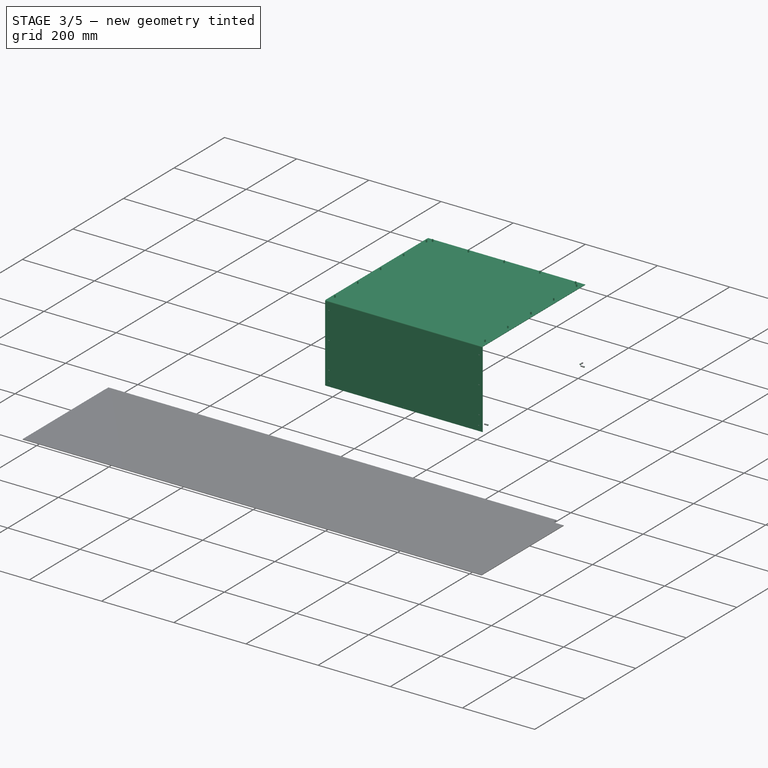
[diagram: stage 3 of 5 — iso view after this stage's code; geometry added in this stage tinted green]
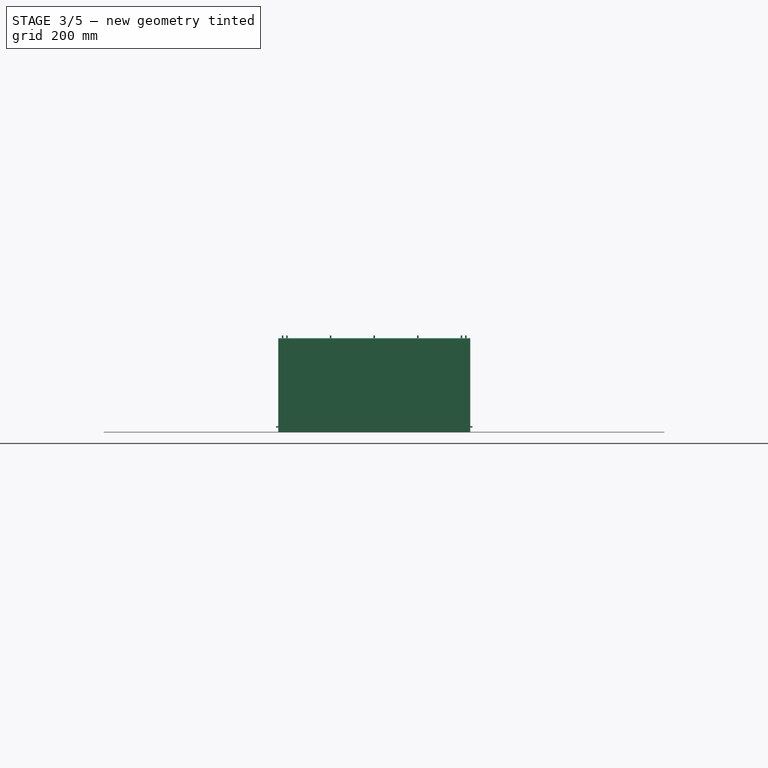
[diagram: stage 3 of 5 — front view after this stage's code; geometry added in this stage tinted green]
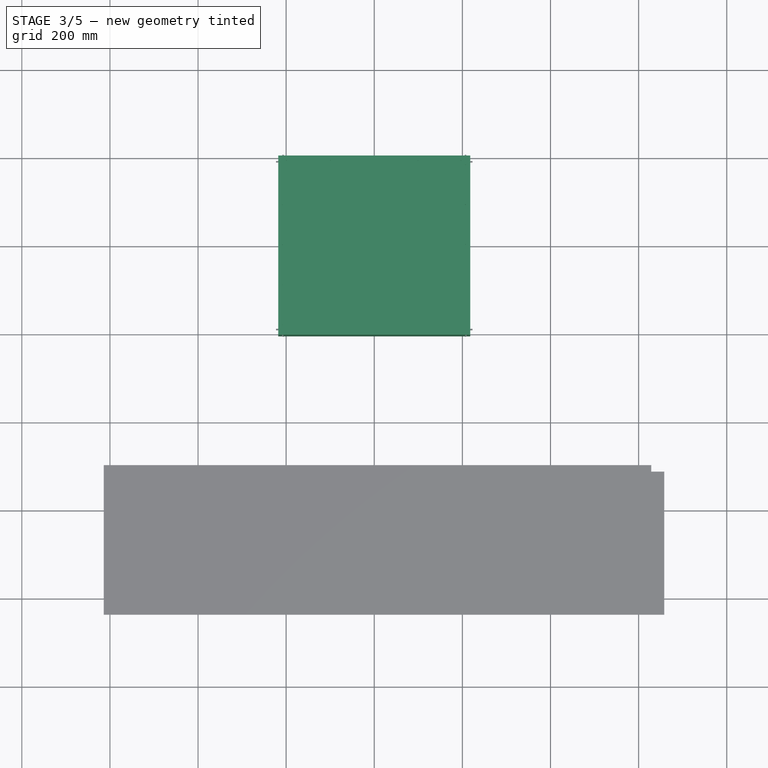
[diagram: stage 3 of 5 — top view after this stage's code; geometry added in this stage tinted green]
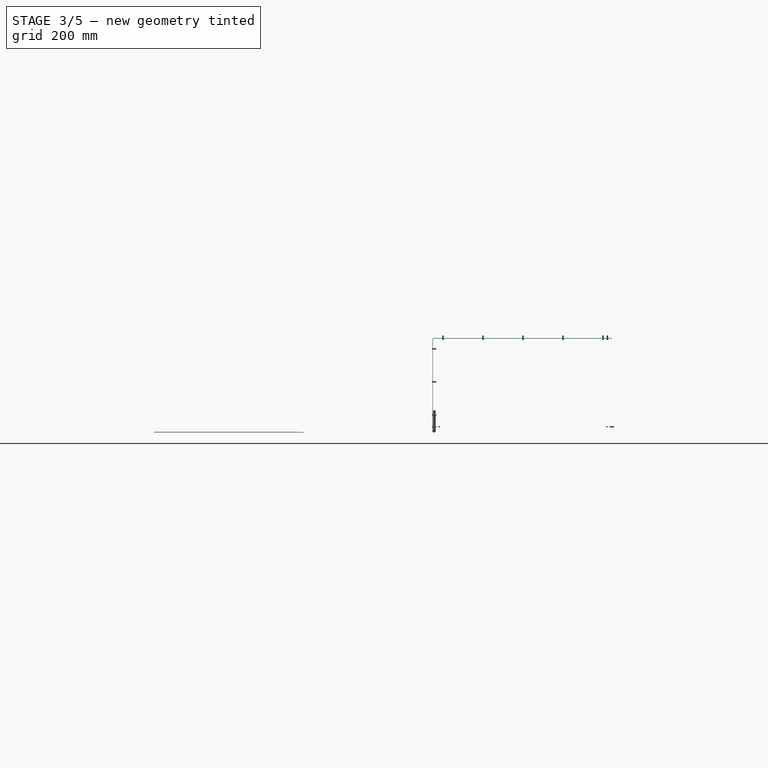
[diagram: stage 3 of 5 — right view after this stage's code; geometry added in this stage tinted green]
FEATURE [Part::FeaturePython] Placment  # WARN: FeaturePython — macro-defined, semantics opaque (R4)
  AttacherType = Attacher::AttachEngine3D
  ExposePlacement = true
  MarkerShape = 1
  MarkerSize = 10
  NumElements = 1
  Placement = pos=(8,-8,10) rot=(-1,0,0;1.5708rad)
  Type = lattice2AttachablePlacement.AttachablePlacement
  isLattice = 1
FEATURE [Part::FeaturePython] Mirror  label="Mirror of Placment"  # WARN: FeaturePython — macro-defined, semantics opaque (R4)
  ExposePlacement = false
  FlipX = true
  FlipY = false
  FlipZ = false
  MarkerShape = 1
  MarkerSize = 10
  NumElements = 1
  Object = -> Placment
  ObjectTraversal = 0
  Placement = pos=(0,0,0) rot=(0,0,1;-1.5708rad)
  Type = lattice2Mirror.LatticeMirror
  isLattice = 1
FEATURE [Part::FeaturePython] Join  # WARN: FeaturePython — macro-defined, semantics opaque (R4)
  ExposePlacement = false
  Interleave = false
  Links = -> [Placment,Mirror]
  MarkerShape = 1
  MarkerSize = 0
  NumElements = 2
  Type = lattice2JoinArrays.JoinArrays
  isLattice = 1
FEATURE [Part::Cylinder] Cylinder
  Angle = 360
  AttacherType = Attacher::AttachEngine3D
  FirstAngle = 0
  Height = 10
  Radius = 1.7
  SecondAngle = 0
FEATURE [PartDesign::Body] Body003
  Group = -> [Binder001,BaseBend002,Boolean001]
  Origin = -> Origin003
  Tip = -> Boolean001
FEATURE [Part::FeaturePython] Placment001  # WARN: FeaturePython — macro-defined, semantics opaque (R4)
  AttacherType = Attacher::AttachEngine3D
  ExposePlacement = true
  MarkerShape = 1
  MarkerSize = 50
  NumElements = 1
  Placement = pos=(215,400,3) rot=(0,0,1;-3.14159rad)
  Type = lattice2AttachablePlacement.AttachablePlacement
  isLattice = 1
  expr: .Placement.Base.x = <<cap_sketch>>.Constraints.length / 2 - 3 mm
  expr: .Placement.Base.y = <<cap_sketch>>.Constraints.width - 3 mm
FEATURE [Part::FeaturePython] Placment002  # WARN: FeaturePython — macro-defined, semantics opaque (R4)
  AttacherType = Attacher::AttachEngine3D
  ExposePlacement = true
  MarkerShape = 1
  MarkerSize = 50
  NumElements = 1
  Placement = pos=(-215,400,3) rot=(0,0,1;-1.5708rad)
  Type = lattice2AttachablePlacement.AttachablePlacement
  isLattice = 1
  expr: .Placement.Base.x = -(<<cap_sketch>>.Constraints.length / 2 - 3 mm)
  expr: .Placement.Base.y = <<cap_sketch>>.Constraints.width - 3 mm
FEATURE [Part::FeaturePython] Placment003  # WARN: FeaturePython — macro-defined, semantics opaque (R4)
  AttacherType = Attacher::AttachEngine3D
  ExposePlacement = true
  MarkerShape = 1
  MarkerSize = 50
  NumElements = 1
  Placement = pos=(215,3,3) rot=(0,0,1;1.5708rad)
  Type = lattice2AttachablePlacement.AttachablePlacement
  isLattice = 1
  expr: .Placement.Base.x = <<cap_sketch>>.Constraints.length / 2 - 3 mm
  expr: .Placement.Base.y = 3 mm
FEATURE [Part::FeaturePython] Placment004  # WARN: FeaturePython — macro-defined, semantics opaque (R4)
  AttacherType = Attacher::AttachEngine3D
  ExposePlacement = true
  MarkerShape = 1
  MarkerSize = 50
  NumElements = 1
  Placement = pos=(-215,3,3) rot=(0,0,1;0rad)
  Type = lattice2AttachablePlacement.AttachablePlacement
  isLattice = 1
  expr: .Placement.Base.x = -(<<cap_sketch>>.Constraints.length / 2 - 3 mm)
  expr: .Placement.Base.y = 3 mm
FEATURE [Part::FeaturePython] Join001  # WARN: FeaturePython — macro-defined, semantics opaque (R4)
  ExposePlacement = false
  Interleave = false
  Links = -> [Placment001,Placment002,Placment003,Placment004]
  MarkerShape = 1
  MarkerSize = 0
  NumElements = 4
  Type = lattice2JoinArrays.JoinArrays
  isLattice = 1
FEATURE [Part::FeaturePython] Populate001  label="Populate Join001 with Join"  # WARN: FeaturePython — macro-defined, semantics opaque (R4)
  Copying = 0
  ExposePlacement = false
  MarkerShape = 1
  MarkerSize = 0
  NumElements = 8
  Object = -> Join
  OutputCompounding = 0
  PlacementsTo = -> Join001
  Referencing = 0
  Type = lattice2PopulateCopies.LatticePopulateCopies
  isLattice = 1
FEATURE [Part::FeaturePython] Populate002  label="Populate Populate Join001 with Join with Cylinder"  # WARN: FeaturePython — macro-defined, semantics opaque (R4)
  Copying = 0
  ExposePlacement = false
  MarkerShape = 1
  MarkerSize = 0
  NumElements = 0
  Object = -> Cylinder
  OutputCompounding = 1
  PlacementsTo = -> Populate001
  Referencing = 0
  Type = lattice2PopulateCopies.LatticePopulateCopies
  isLattice = 0
FEATURE [Sketcher::SketchObject] Sketch004
  ExternalGeometry = -> [Sketch002]
  FullyConstrained = true
  sketch-geometry (5):
    g0: LineSegment StartX=-218 StartY=0 StartZ=0 EndX=218 EndY=0 EndZ=0
    g1: LineSegment StartX=218 StartY=0 StartZ=0 EndX=218 EndY=403 EndZ=0
    g2: LineSegment StartX=218 StartY=403 StartZ=0 EndX=-218 EndY=403 EndZ=0
    g3: LineSegment StartX=-218 StartY=403 StartZ=0 EndX=-218 EndY=0 EndZ=0
    g4: GeomPoint X=0 Y=201.5 Z=0
  constraints (12):
    c: Coincident(g0,g1)
    c: Coincident(g1,g2)
    c: Coincident(g2,g3)
    c: Coincident(g3,g0)
    c: Horizontal(g0)
    c: Horizontal(g2)
    c: Vertical(g1)
    c: Vertical(g3)
    c: Symmetric(g2,g0,g4)
    c: PointOnObject(g4,g-2)
    c: Coincident(g1,g-3)
    c: PointOnObject(g0,g-1)
FEATURE [PartDesign::SubShapeBinder] Binder002
  BindCopyOnChange = 0
  BindMode = 0
  ClaimChildren = true
  Context = -> Body004 [Binder002.]
  Fuse = false
  MakeFace = true
  OffsetFill = false
  OffsetIntersection = false
  OffsetJoinType = 0
  OffsetOpenResult = false
  PartialLoad = false
  Placement = pos=(0,0,0) rot=(0.57735,0.57735,0.57735;2.0944rad)
  Relative = false
  Support = -> [Sketch005]
  _Version = 2
  expr: Placement = Support[0][0].Placement
FEATURE [Part::FeaturePython] LinearArray  # WARN: FeaturePython — macro-defined, semantics opaque (R4)
  Alignment = 0
  CellStart = A1
  Count = 5
  Dir = (1,0,0)
  DirIsDriven = true
  DistributionLaw = 0
  DrivenProperty = 1
  EndInclusive = true
  ExposePlacement = false
  GeneratorMode = 0
  MarkerShape = 1
  MarkerSize = 0
  NumElements = 5
  OrientMode = 1
  Placement = pos=(208,0,0) rot=(0,0,1;1.5708rad)
  Point = (0,0,0)
  PointIsDriven = true
  Reverse = false
  SpanEnd = 383
  SpanStart = 20
  Step = 90.75
  Type = lattice2LinearArray.LinearArray
  VSGVersion = 1
  Values = 20.0 | 110.75 | 201.5 | 292.25 | 383.0
  ValuesSource = 2
  isLattice = 1
  expr: .Placement.Base.x = <<cap_sketch>>.Constraints.length / 2 - 10 mm
  expr: SpanEnd = <<cap_sketch>>.Constraints.width - SpanStart
FEATURE [Part::FeaturePython] Mirror001  label="Mirror001 of LinearArray"  # WARN: FeaturePython — macro-defined, semantics opaque (R4)
  ExposePlacement = false
  FlipX = true
  FlipY = false
  FlipZ = false
  MarkerShape = 1
  MarkerSize = 0
  NumElements = 5
  Object = -> LinearArray
  ObjectTraversal = 0
  Type = lattice2Mirror.LatticeMirror
  isLattice = 1
FEATURE [Part::FeaturePython] LinearArray001  # WARN: FeaturePython — macro-defined, semantics opaque (R4)
  Alignment = 0
  CellStart = A1
  Count = 5
  Dir = (1,0,0)
  DirIsDriven = true
  DistributionLaw = 0
  DrivenProperty = 1
  EndInclusive = true
  ExposePlacement = false
  GeneratorMode = 0
  MarkerShape = 1
  MarkerSize = 0
  NumElements = 5
  OrientMode = 1
  Placement = pos=(-198,393,0) rot=(0,0,1;0rad)
  Point = (0,0,0)
  PointIsDriven = true
  Reverse = false
  SpanEnd = 396
  SpanStart = 0
  Step = 99
  Type = lattice2LinearArray.LinearArray
  VSGVersion = 1
  Values = 0.0 | 99.0 | 198.0 | 297.0 | 396.0
  ValuesSource = 2
  isLattice = 1
  expr: .Placement.Base.x = -SpanEnd / 2
  expr: .Placement.Base.y = <<cap_sketch>>.Constraints.width - 10 mm
  expr: SpanEnd = <<cap_sketch>>.Constraints.length - 40 mm
FEATURE [Part::FeaturePython] Join002  # WARN: FeaturePython — macro-defined, semantics opaque (R4)
  ExposePlacement = false
  Interleave = false
  Links = -> [LinearArray,Mirror001,LinearArray001]
  MarkerShape = 1
  MarkerSize = 0
  NumElements = 15
  Type = lattice2JoinArrays.JoinArrays
  isLattice = 1
FEATURE [Part::FeaturePython] Placment005  # WARN: FeaturePython — macro-defined, semantics opaque (R4)
  AttacherType = Attacher::AttachEngine3D
  ExposePlacement = true
  MarkerShape = 1
  MarkerSize = 100
  NumElements = 1
  Placement = pos=(0,0,210) rot=(0,0,1;0rad)
  Type = lattice2AttachablePlacement.AttachablePlacement
  isLattice = 1
  expr: .Placement.Base.z = <<BaseBend001>>.length
FEATURE [Part::FeaturePython] Populate004  label="Populate Placment005 with Join002"  # WARN: FeaturePython — macro-defined, semantics opaque (R4)
  Copying = 0
  ExposePlacement = false
  MarkerShape = 1
  MarkerSize = 0
  NumElements = 15
  Object = -> Join002
  OutputCompounding = 0
  PlacementsTo = -> Placment005
  Referencing = 0
  Type = lattice2PopulateCopies.LatticePopulateCopies
  isLattice = 1
FEATURE [Sketcher::SketchObject] Sketch005
  FullyConstrained = true
  Placement = pos=(0,0,0) rot=(0.57735,0.57735,0.57735;2.0944rad)
  expr: Constraints[2] = <<cap_sketch>>.Constraints.width
  expr: Constraints[3] = <<BaseBend001>>.length + 4 mm
  sketch-geometry (2):
    g0: LineSegment StartX=-4 StartY=0 StartZ=0 EndX=-4 EndY=214 EndZ=0
    g1: LineSegment StartX=-4 StartY=214 StartZ=0 EndX=403 EndY=214 EndZ=0
  constraints (7):
    c: Coincident(g0,g1)
    c: Horizontal(g1)
    c: DistanceX(g1) = 403
    c: DistanceY(g1) = 214
    c: PointOnObject(g0,g-1)
    c: DistanceX(g0) = -4
    c: Vertical(g0)
FEATURE [PartDesign::FeaturePython] BaseBend003  # WARN: FeaturePython — macro-defined, semantics opaque (R4)
  BendSide = 0
  BendSketch = -> Binder002
  MidPlane = true
  Reverse = false
  Suppressed = false
  length = 436
  radius = 1
  thickness = 1
  expr: length = <<cap_sketch>>.Constraints.length
FEATURE [Part::FeaturePython] LinearArray002  # WARN: FeaturePython — macro-defined, semantics opaque (R4)
  Alignment = 0
  CellStart = A1
  Count = 3
  Dir = (1,0,0)
  DirIsDriven = true
  DistributionLaw = 0
  DrivenProperty = 1
  EndInclusive = true
  ExposePlacement = false
  GeneratorMode = 0
  MarkerShape = 1
  MarkerSize = 0
  NumElements = 3
  OrientMode = 1
  Placement = pos=(208,-5,40) rot=(-0.57735,-0.57735,-0.57735;2.0944rad)
  Point = (0,0,0)
  PointIsDriven = true
  Reverse = false
  SpanEnd = 150
  SpanStart = 0
  Step = 75
  Type = lattice2LinearArray.LinearArray
  VSGVersion = 1
  Values = 0.0 | 75.0 | 150.0
  ValuesSource = 2
  isLattice = 1
  expr: .Placement.Base.x = <<cap_sketch>>.Constraints.length / 2 - 10 mm
FEATURE [Part::FeaturePython] Mirror002  label="Mirror002 of LinearArray002"  # WARN: FeaturePython — macro-defined, semantics opaque (R4)
  ExposePlacement = false
  FlipX = true
  FlipY = false
  FlipZ = false
  MarkerShape = 1
  MarkerSize = 0
  NumElements = 3
  Object = -> LinearArray002
  ObjectTraversal = 0
  Type = lattice2Mirror.LatticeMirror
  isLattice = 1
FEATURE [Part::FeaturePython] Join003  # WARN: FeaturePython — macro-defined, semantics opaque (R4)
  ExposePlacement = false
  Interleave = false
  Links = -> [LinearArray002,Mirror002,Populate004]
  MarkerShape = 1
  MarkerSize = 0
  NumElements = 21
  Type = lattice2JoinArrays.JoinArrays
  isLattice = 1
FEATURE [Part::FeaturePython] Populate005  label="Populate Populate Placment005 with Join002 with Cylinder"  # WARN: FeaturePython — macro-defined, semantics opaque (R4)
  Copying = 0
  ExposePlacement = false
  MarkerShape = 1
  MarkerSize = 0
  NumElements = 0
  Object = -> Cylinder
  OutputCompounding = 1
  PlacementsTo = -> Join003
  Referencing = 0
  Type = lattice2PopulateCopies.LatticePopulateCopies
  isLattice = 0
FEATURE [PartDesign::Body] Body002
  Group = -> [Binder,BaseBend001,Bend,Boolean002]
  Origin = -> Origin002
  Tip = -> Boolean002
FEATURE [Part::MultiFuse] Fusion002
  Shapes = -> [Populate005,Populate002]
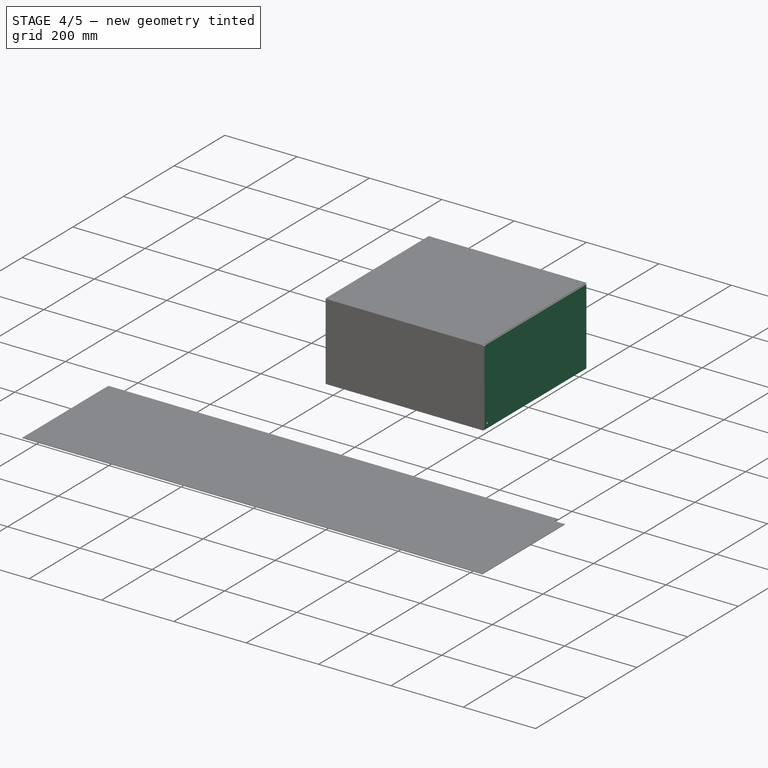
[diagram: stage 4 of 5 — iso view after this stage's code; geometry added in this stage tinted green]
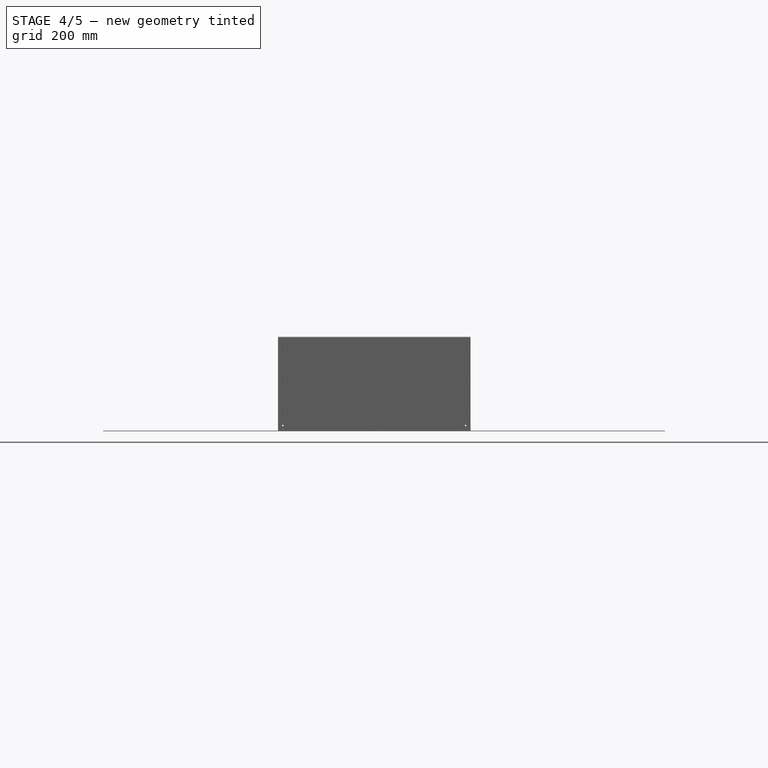
[diagram: stage 4 of 5 — front view after this stage's code; geometry added in this stage tinted green]
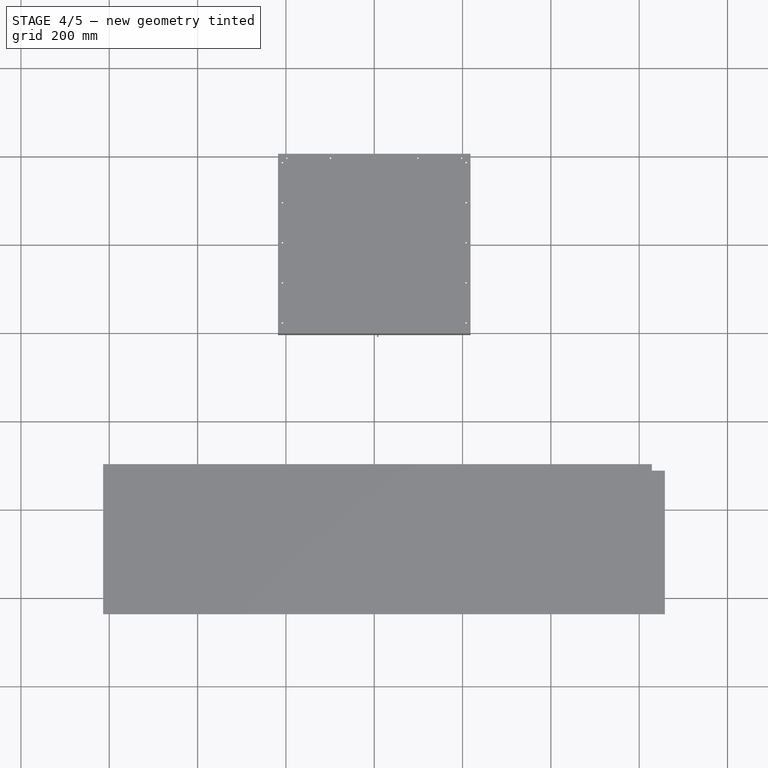
[diagram: stage 4 of 5 — top view after this stage's code; geometry added in this stage tinted green]
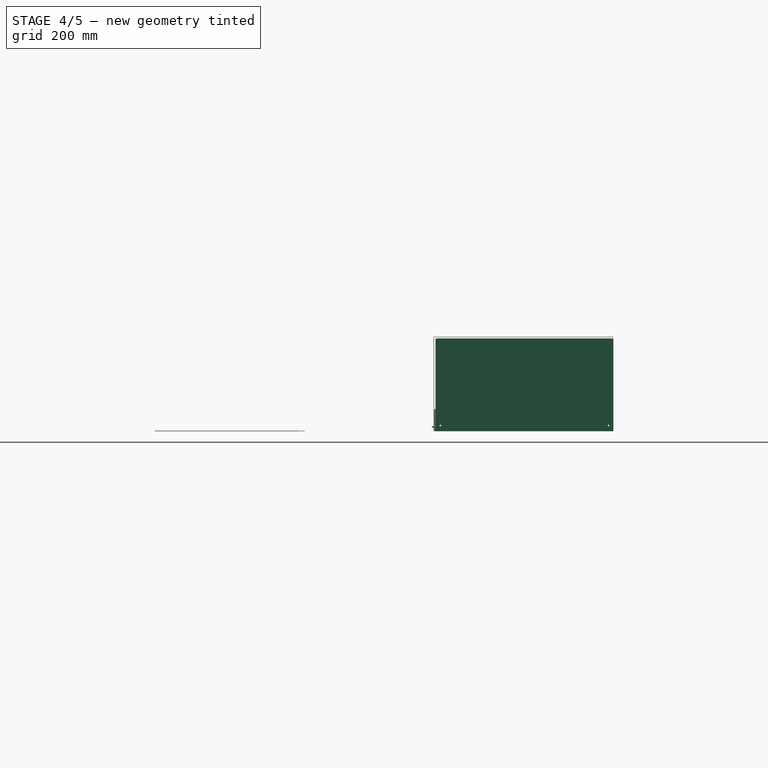
[diagram: stage 4 of 5 — right view after this stage's code; geometry added in this stage tinted green]
FEATURE [PartDesign::FeaturePython] Bend  # WARN: FeaturePython — macro-defined, semantics opaque (R4)
  AutoMiter = true
  BaseFeature = -> BaseBend001
  BendType = 0
  LengthList = [20]
  LengthSpec = 0
  ReliefFactor = 0.7
  Suppressed = false
  UseReliefFactor = false
  angle = 90
  baseObject = -> BaseBend001 [Edge17,Edge33,Edge49]
  bendAList = [90]
  extend1 = 0
  extend2 = 0
  gap1 = 3
  gap2 = 3
  invert = false
  kfactor = 0.5
  length = 20
  maxExtendDist = 5
  minGap = 0.2
  minReliefGap = 1
  miterangle1 = 0
  miterangle2 = 0
  offset = 0
  radius = 0.1
  reliefType = 0
  reliefd = 1
  reliefw = 0.8
  sketchflip = false
  sketchinvert = false
  unfold = false
  expr: radius = BaseBend001.radius
FEATURE [Part::FeaturePython] Populate  label="Populate Join with Cylinder"  # WARN: FeaturePython — macro-defined, semantics opaque (R4)
  Copying = 0
  ExposePlacement = false
  MarkerShape = 1
  MarkerSize = 0
  NumElements = 0
  Object = -> Cylinder
  OutputCompounding = 1
  PlacementsTo = -> Join
  Referencing = 0
  Type = lattice2PopulateCopies.LatticePopulateCopies
  isLattice = 0
FEATURE [Part::MultiFuse] Fusion
  Shapes = -> [Populate]
FEATURE [Part::MultiFuse] Fusion001
  Shapes = -> [Populate002,Populate005]
FEATURE [PartDesign::Boolean] Boolean002
  BaseFeature = -> Bend
  Group = -> [Fusion001]
  Suppressed = false
  Type = 1
  UsePlacement = true
FEATURE [PartDesign::Boolean] Boolean003
  BaseFeature = -> BaseBend003
  Group = -> [Fusion002]
  Suppressed = false
  Type = 1
  UsePlacement = true
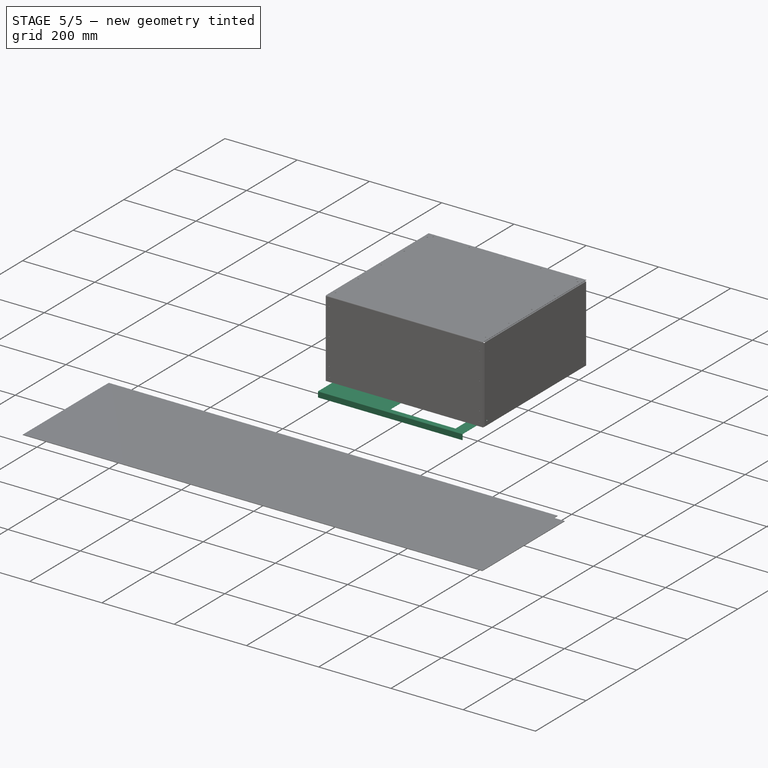
[diagram: stage 5 of 5 — iso view after this stage's code; geometry added in this stage tinted green]
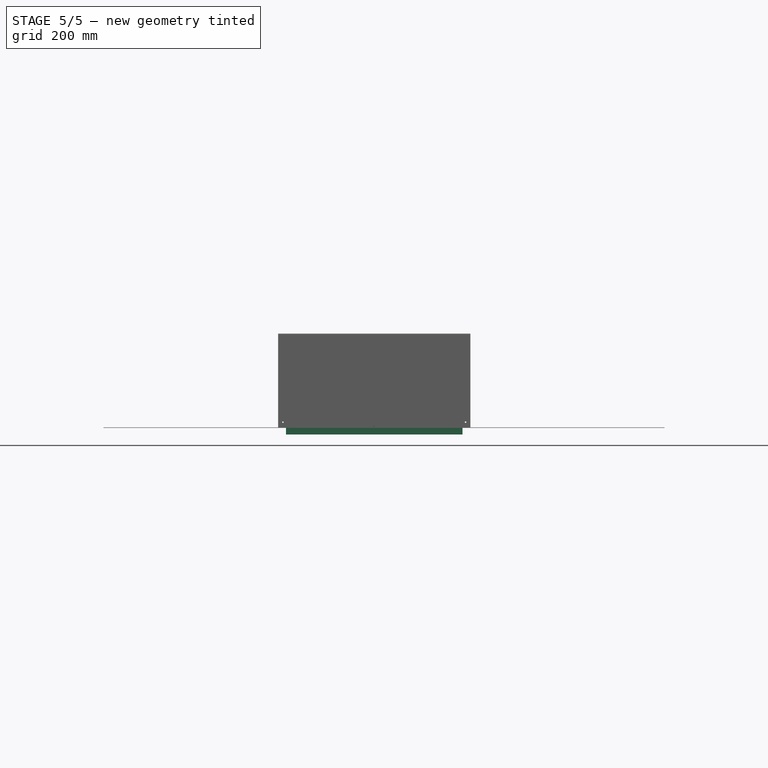
[diagram: stage 5 of 5 — front view after this stage's code; geometry added in this stage tinted green]
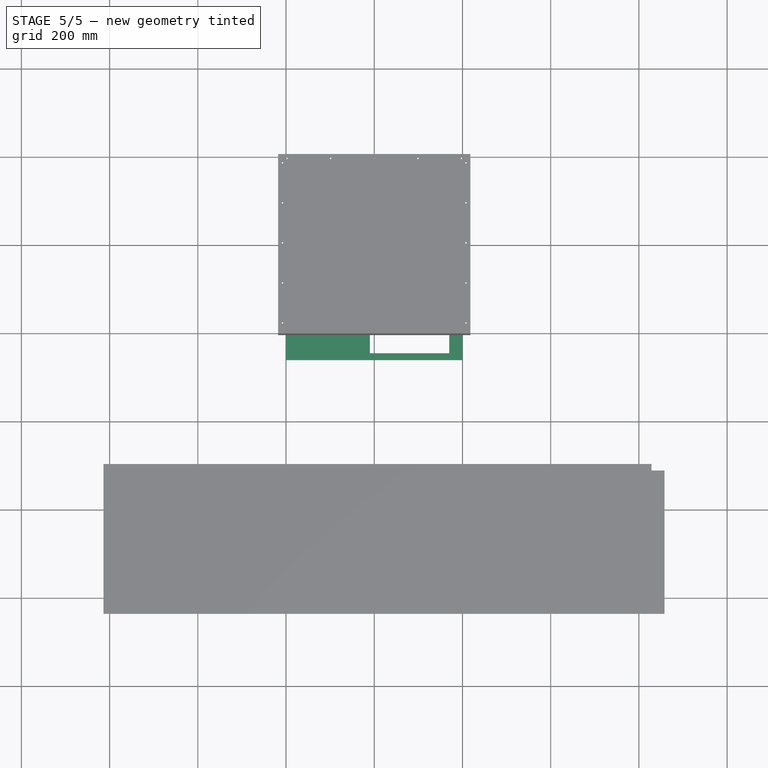
[diagram: stage 5 of 5 — top view after this stage's code; geometry added in this stage tinted green]
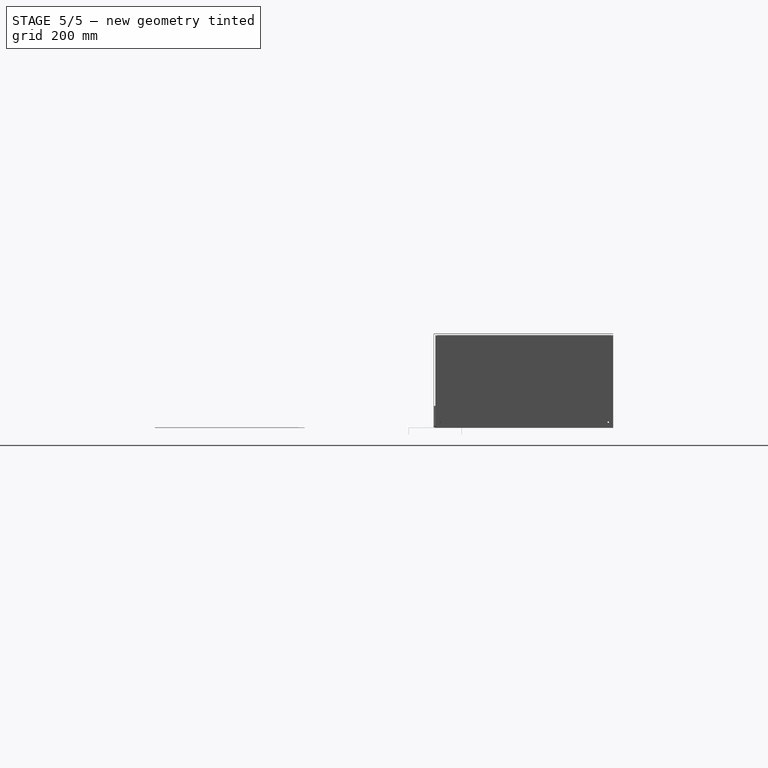
[diagram: stage 5 of 5 — right view after this stage's code; geometry added in this stage tinted green]
FEATURE [Sketcher::SketchObject] Sketch
  FullyConstrained = true
  sketch-geometry (5):
    g0: LineSegment StartX=-45 StartY=-90 StartZ=0 EndX=45 EndY=-90 EndZ=0
    g1: LineSegment StartX=45 StartY=-90 StartZ=0 EndX=45 EndY=90 EndZ=0
    g2: LineSegment StartX=45 StartY=90 StartZ=0 EndX=-45 EndY=90 EndZ=0
    g3: LineSegment StartX=-45 StartY=90 StartZ=0 EndX=-45 EndY=-90 EndZ=0
    g4: GeomPoint X=0 Y=0 Z=0
  constraints (12):
    c: Coincident(g0,g1)
    c: Coincident(g1,g2)
    c: Coincident(g2,g3)
    c: Coincident(g3,g0)
    c: Horizontal(g0)
    c: Horizontal(g2)
    c: Vertical(g1)
    c: Vertical(g3)
    c: Symmetric(g2,g0,g4)
    c: Coincident(g4,g-1)
    c: DistanceX(g0,g1) = 90
    c: DistanceY(g0,g1) = 180
FEATURE [Part::Extrusion] Extrude
  Base = -> Sketch
  Dir = (0,0,1)
  DirMode = 2
  FaceMakerClass = Part::FaceMakerBullseye
  LengthFwd = 10
  LengthRev = 0
  Placement = pos=(80,0,-9) rot=(0,0,1;1.5708rad)
  Solid = true
  Symmetric = false
FEATURE [Sketcher::SketchObject] Sketch001
  AttachmentSupport = -> [YZ_Plane]
  FullyConstrained = true
  MapMode = 5
  Placement = pos=(0,0,0) rot=(0.57735,0.57735,0.57735;2.0944rad)
  sketch-geometry (5):
    g0: LineSegment StartX=-60 StartY=-15 StartZ=0 EndX=60 EndY=-15 EndZ=0
    g1: LineSegment StartX=60 StartY=-15 StartZ=0 EndX=60 EndY=0 EndZ=0
    g2: LineSegment StartX=60 StartY=0 StartZ=0 EndX=-60 EndY=0 EndZ=0
    g3: LineSegment StartX=-60 StartY=0 StartZ=0 EndX=-60 EndY=-15 EndZ=0
    g4: GeomPoint X=-3e-16 Y=-7.5 Z=0
  constraints (13):
    c: Coincident(g0,g1)
    c: Coincident(g1,g2)
    c: Coincident(g2,g3)
    c: Coincident(g3,g0)
    c: Horizontal(g0)
    c: Horizontal(g2)
    c: Vertical(g1)
    c: Vertical(g3)
    c: Symmetric(g2,g0,g4)
    c: PointOnObject(g4,g-2)
    c: PointOnObject(g1,g-1)
    c: DistanceX(g0,g1) = 120
    c: DistanceY(g0,g1) = 15
FEATURE [PartDesign::FeaturePython] BaseBend  # WARN: FeaturePython — macro-defined, semantics opaque (R4)
  BendSide = 0
  BendSketch = -> Sketch001
  MidPlane = true
  Reverse = false
  Suppressed = false
  length = 400
  radius = 0.1
  thickness = 0.3
FEATURE [PartDesign::Body] Body001  label="dummy_body"
  Origin = -> Origin001
FEATURE [Part::Compound] Compound
  Links = -> [Extrude]
FEATURE [PartDesign::Boolean] Boolean
  BaseFeature = -> BaseBend
  Group = -> [Compound]
  Suppressed = false
  Type = 1
  UsePlacement = true
FEATURE [Sketcher::SketchObject] Sketch003
  FullyConstrained = true
  sketch-geometry (2):
    g0: LineSegment StartX=0 StartY=15 StartZ=0 EndX=0 EndY=0 EndZ=0
    g1: LineSegment StartX=0 StartY=0 StartZ=0 EndX=15 EndY=0 EndZ=0
  constraints (6):
    c: PointOnObject(g0,g-2)
    c: Coincident(g0,g-1)
    c: Coincident(g0,g1)
    c: PointOnObject(g1,g-1)
    c: Equal(g1,g0)
    c: DistanceX(g1,g1) = 15
FEATURE [PartDesign::SubShapeBinder] Binder001
  BindCopyOnChange = 0
  BindMode = 0
  ClaimChildren = true
  Context = -> Body003 [Binder001.]
  Fuse = false
  MakeFace = true
  OffsetFill = false
  OffsetIntersection = false
  OffsetJoinType = 0
  OffsetOpenResult = false
  PartialLoad = false
  Relative = false
  Support = -> [Sketch003]
  _Version = 2
FEATURE [PartDesign::FeaturePython] BaseBend002  # WARN: FeaturePython — macro-defined, semantics opaque (R4)
  BendSide = 1
  BendSketch = -> Binder001
  MidPlane = false
  Reverse = false
  Suppressed = false
  length = 20
  radius = 0.1
  thickness = 0.3
FEATURE [PartDesign::Boolean] Boolean001
  BaseFeature = -> BaseBend002
  Group = -> [Fusion]
  Suppressed = false
  Type = 1
  UsePlacement = true
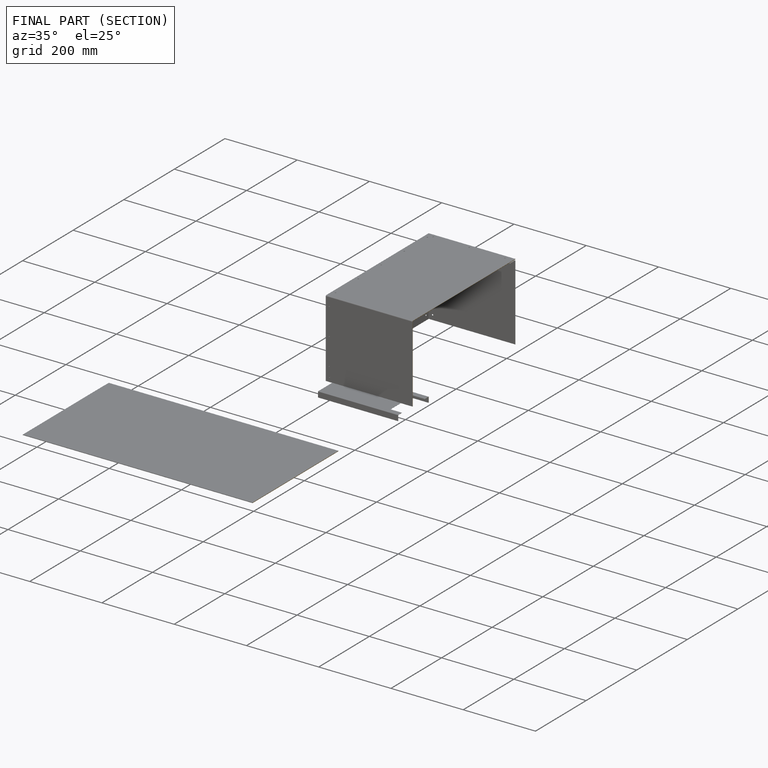
[diagram: finished part — half-section view (interior)]
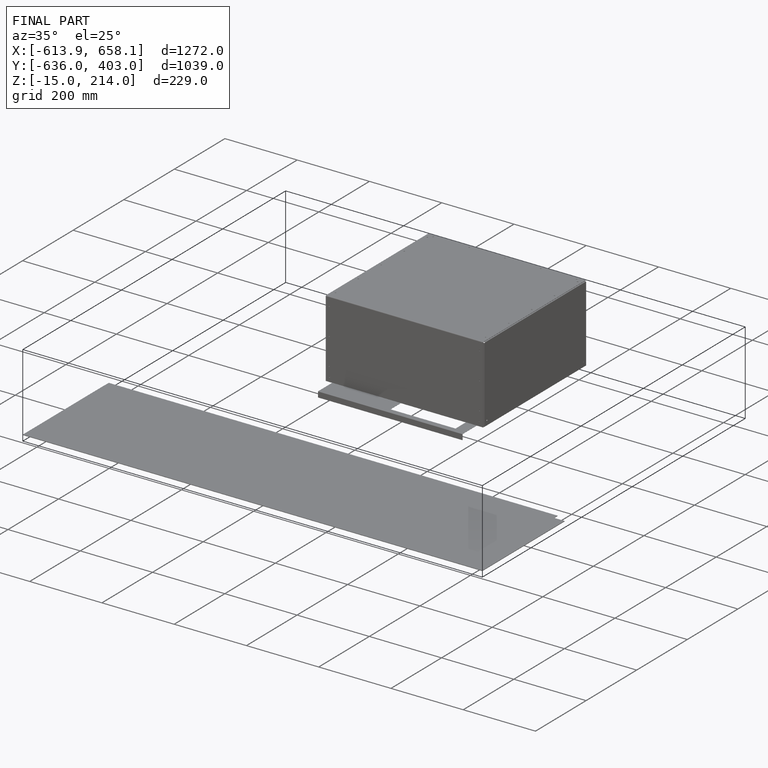
[diagram: finished part — iso view with bounding-box wireframe]
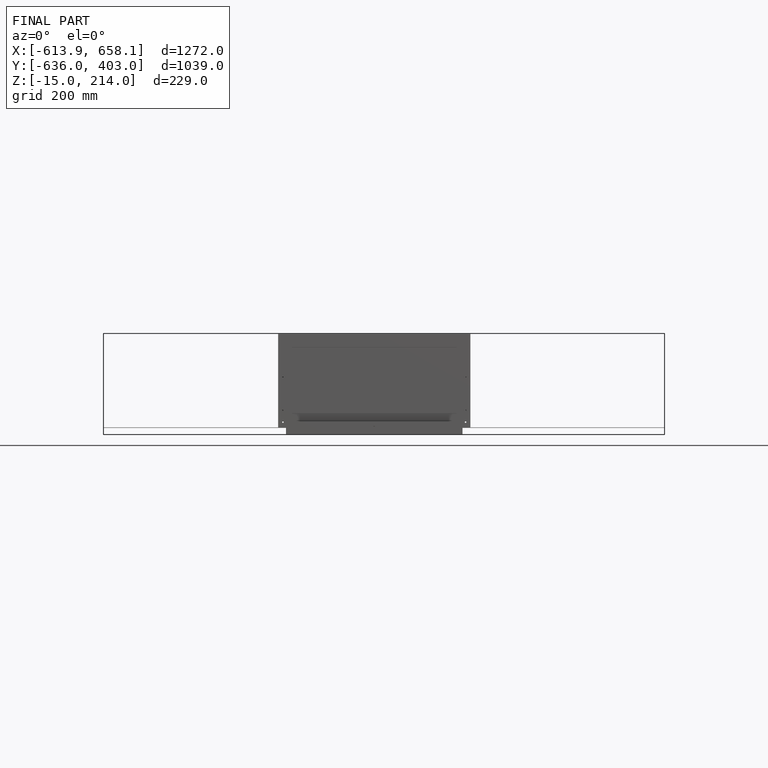
[diagram: finished part — front view with bounding-box wireframe]
